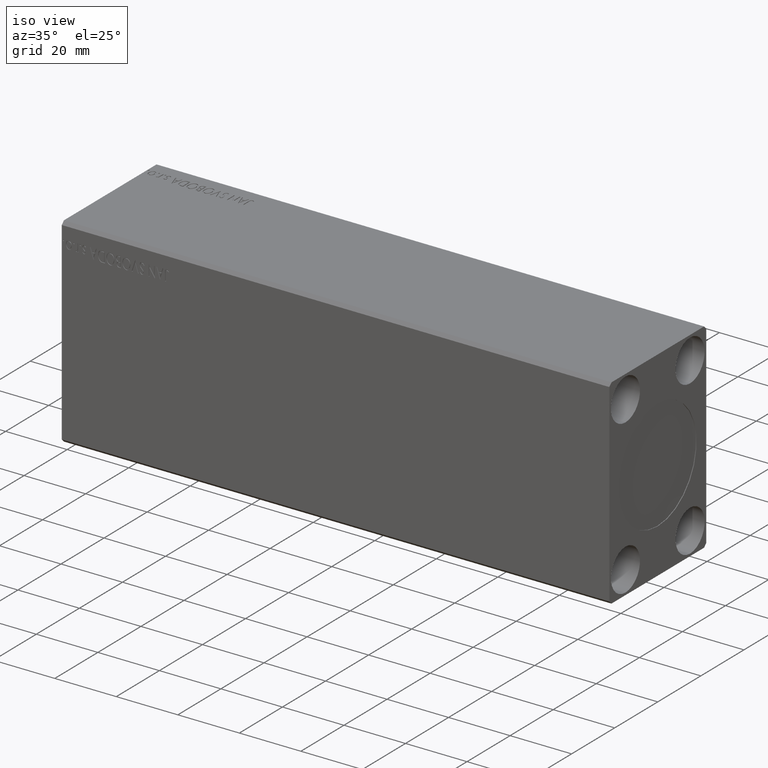
[diagram: clean part render]
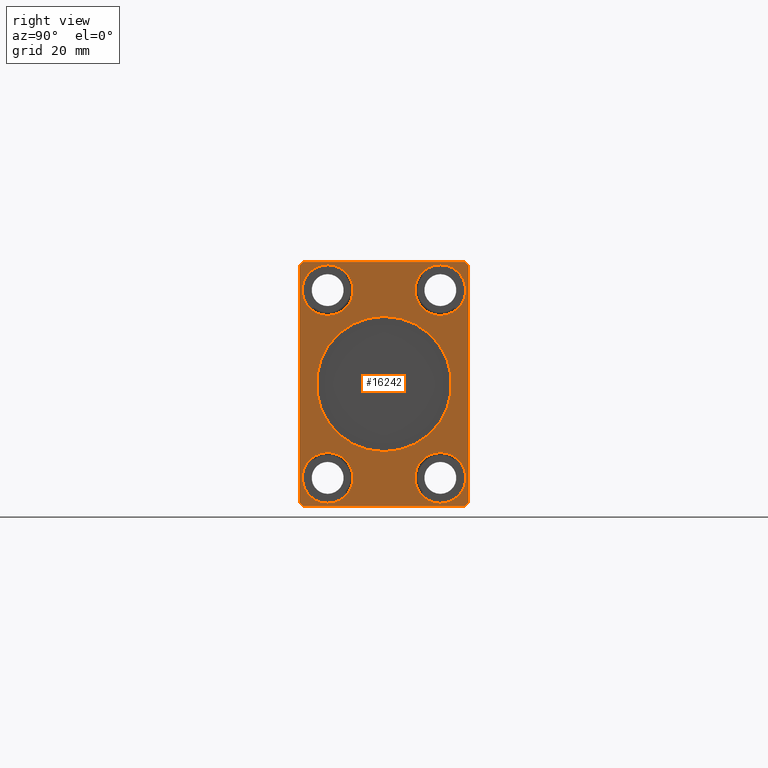
[diagram: tour spotlight — one face highlighted and labeled with its STEP entity id]
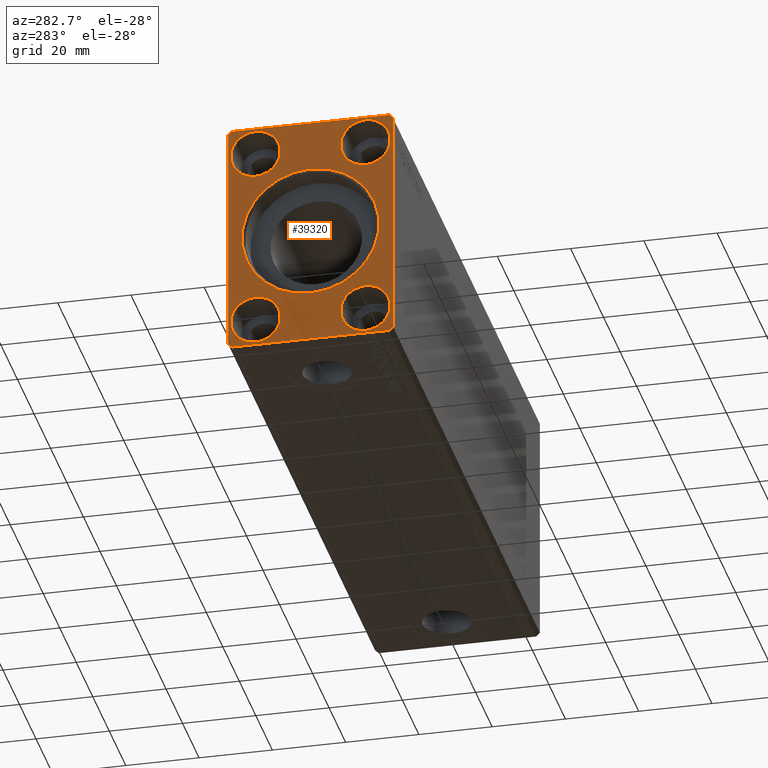
[diagram: tour spotlight — one face highlighted and labeled with its STEP entity id]
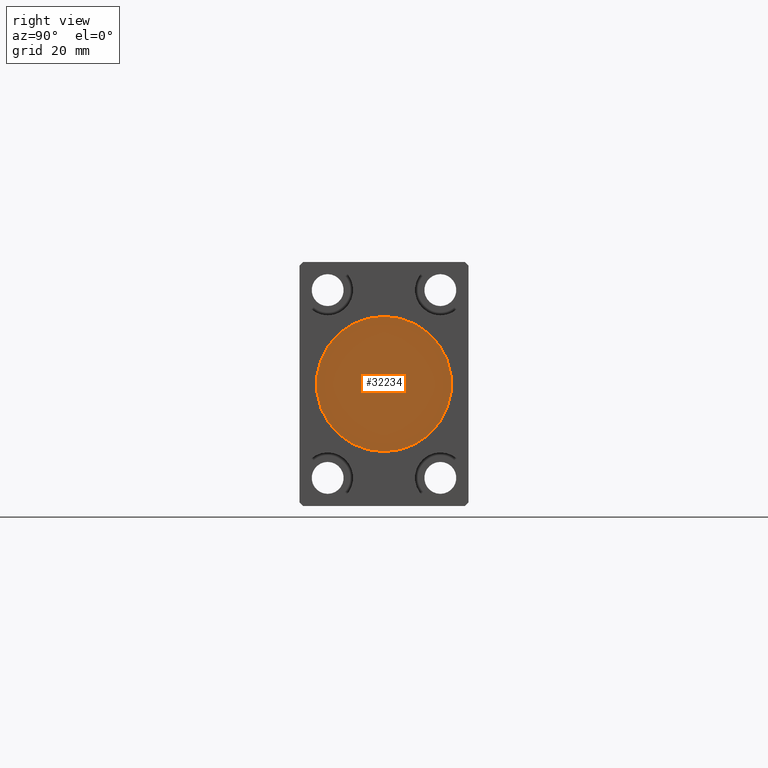
[diagram: tour spotlight — one face highlighted and labeled with its STEP entity id]
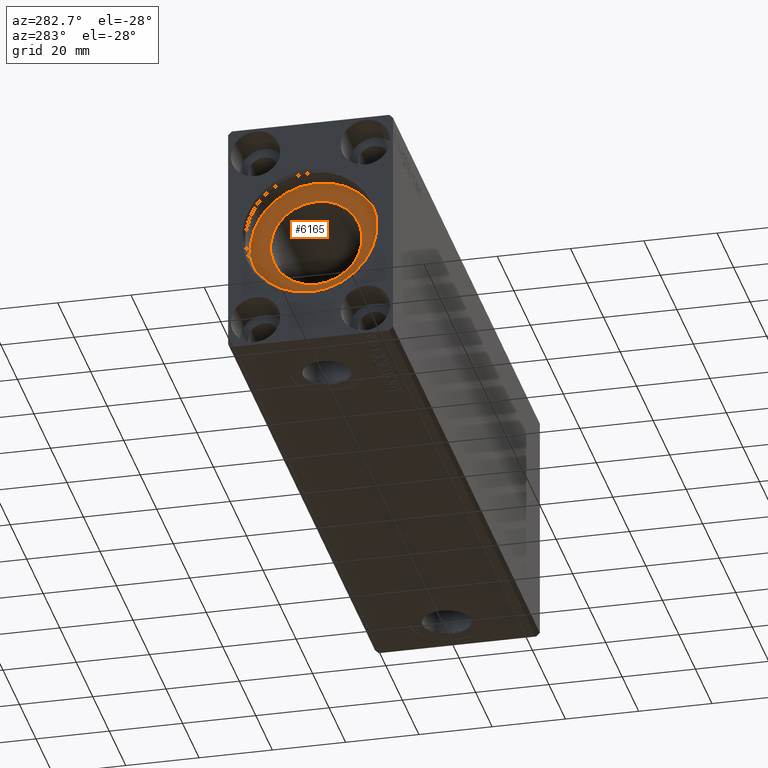
[diagram: tour spotlight — one face highlighted and labeled with its STEP entity id]
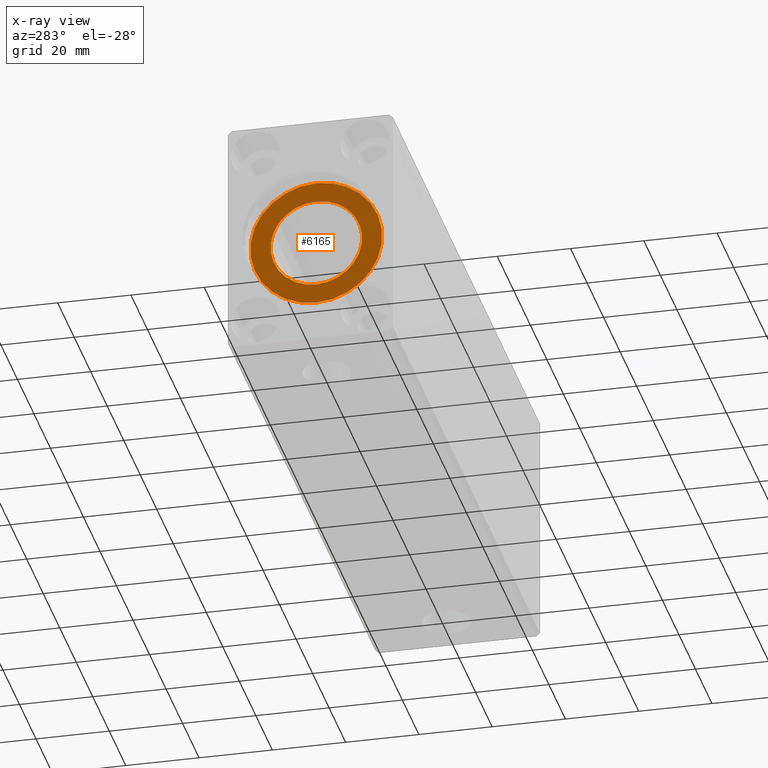
[diagram: x-ray of the same camera — body ghosted, this tour face saturated]
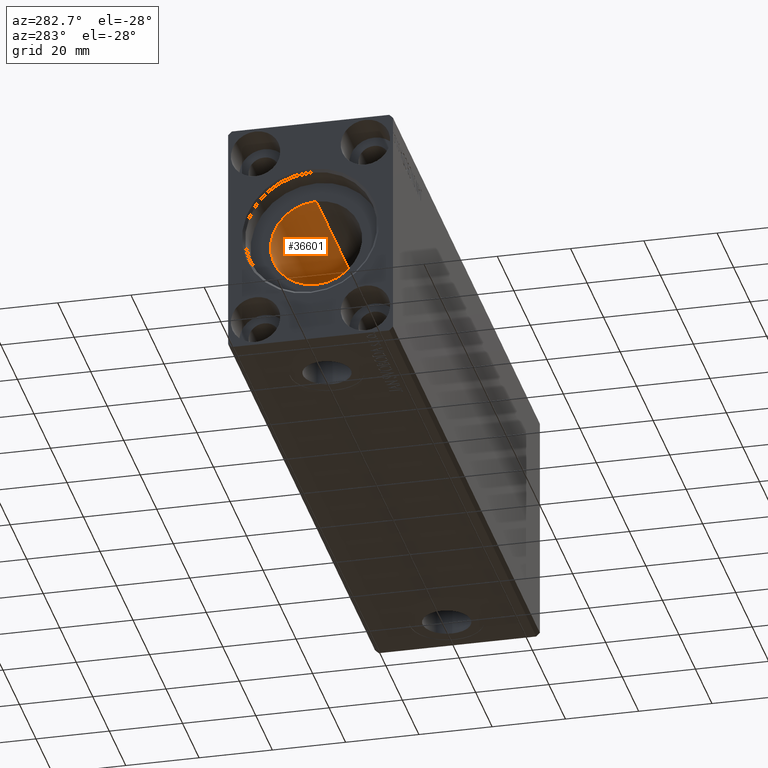
[diagram: tour spotlight — one face highlighted and labeled with its STEP entity id]
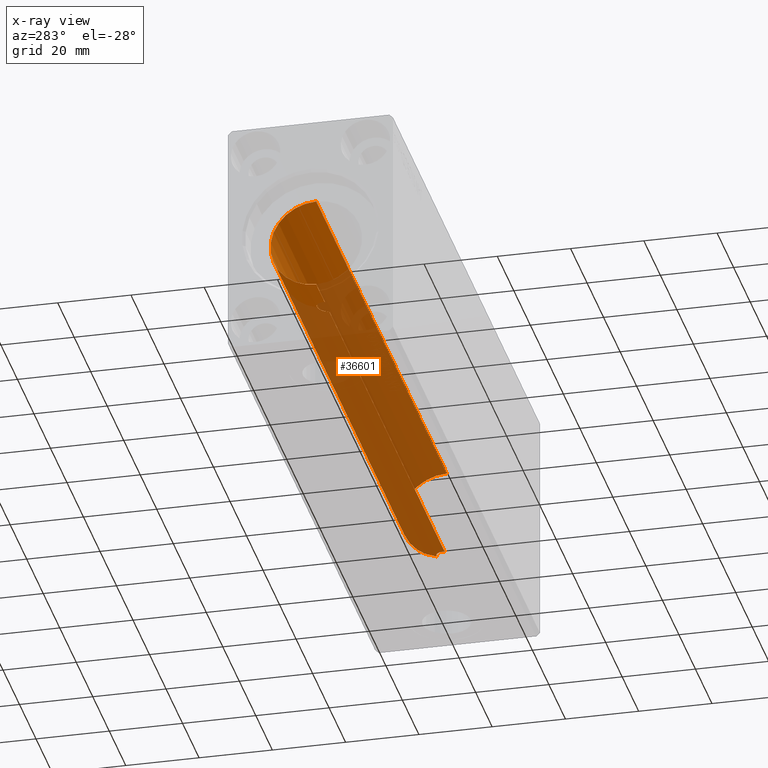
[diagram: x-ray of the same camera — body ghosted, this tour face saturated]
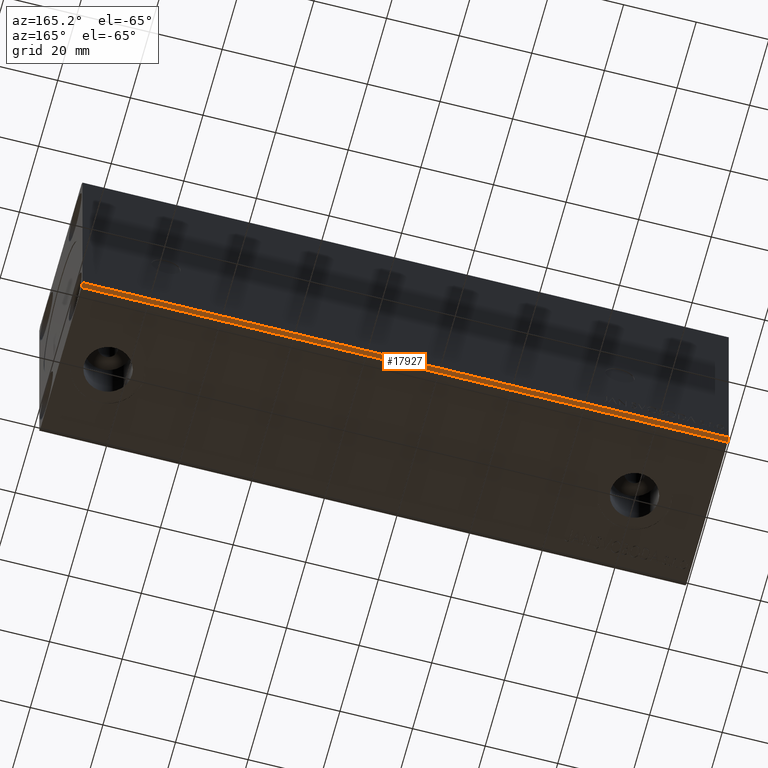
[diagram: tour spotlight — one face highlighted and labeled with its STEP entity id]
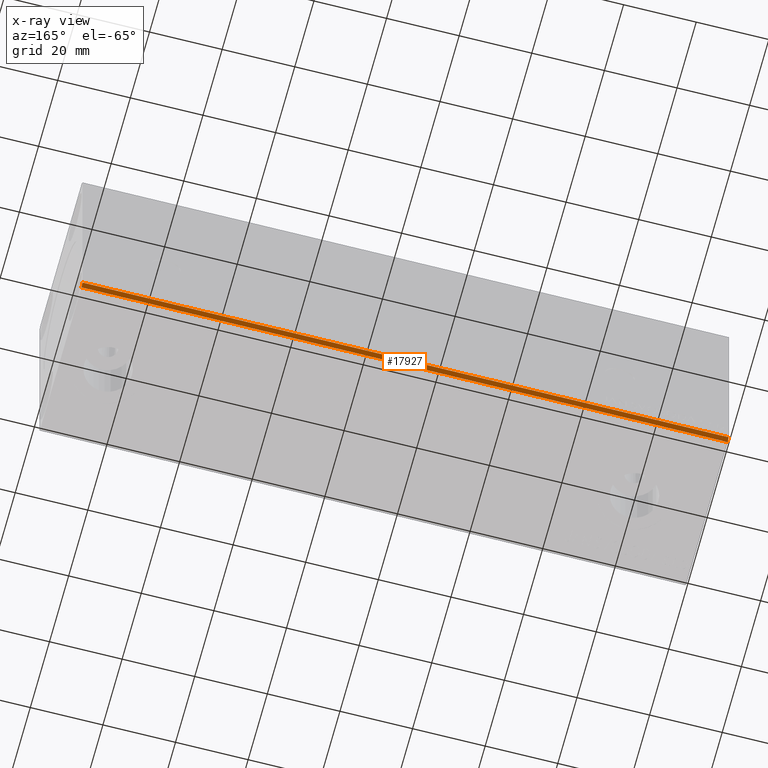
[diagram: x-ray of the same camera — body ghosted, this tour face saturated]
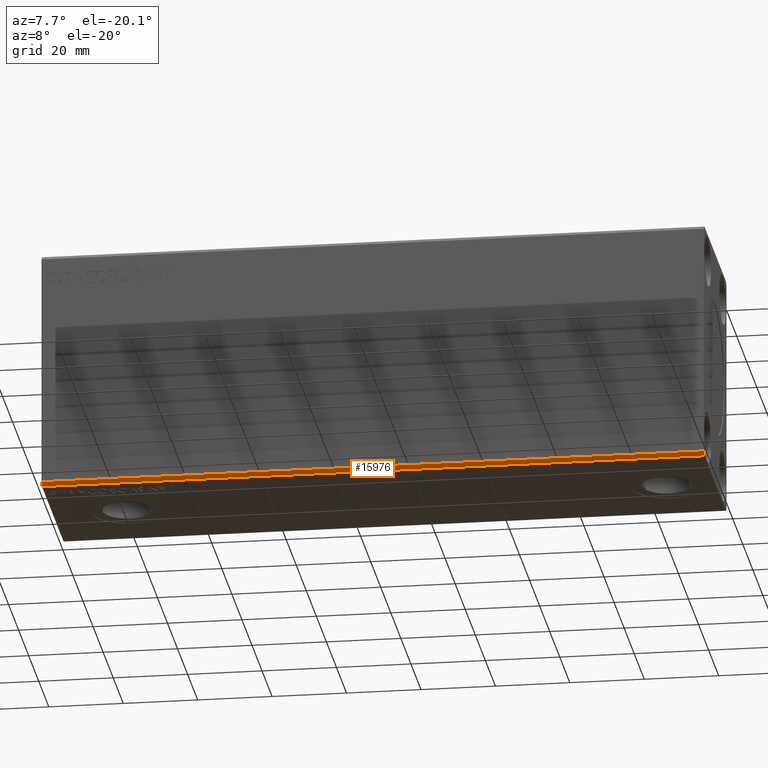
[diagram: tour spotlight — one face highlighted and labeled with its STEP entity id]
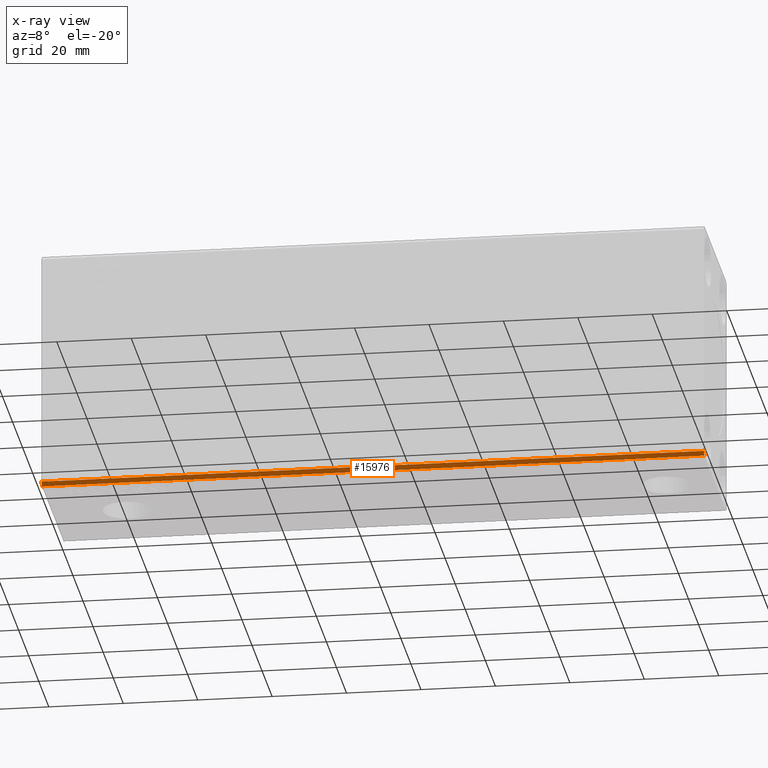
[diagram: x-ray of the same camera — body ghosted, this tour face saturated]
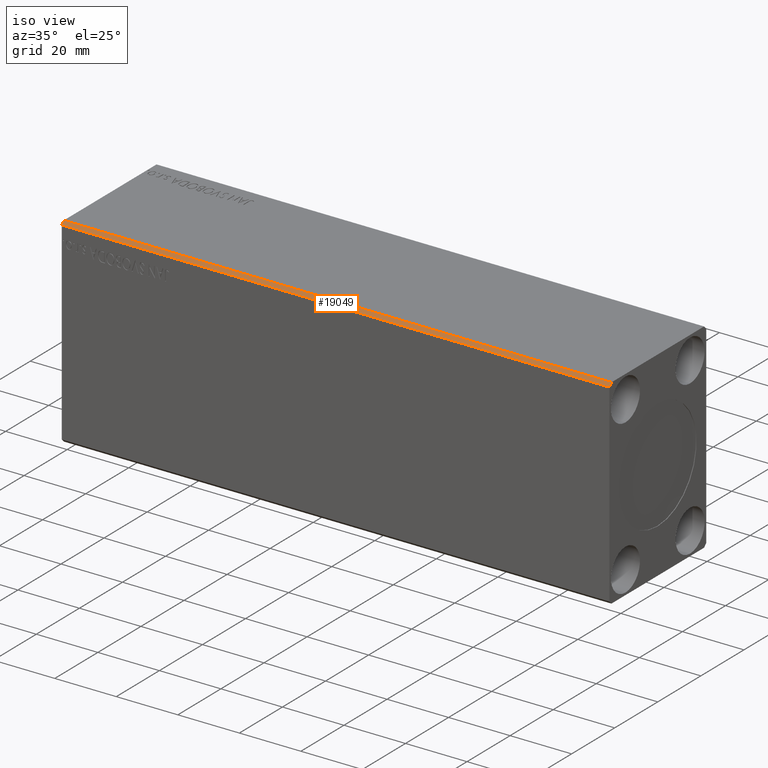
[diagram: tour spotlight — one face highlighted and labeled with its STEP entity id]
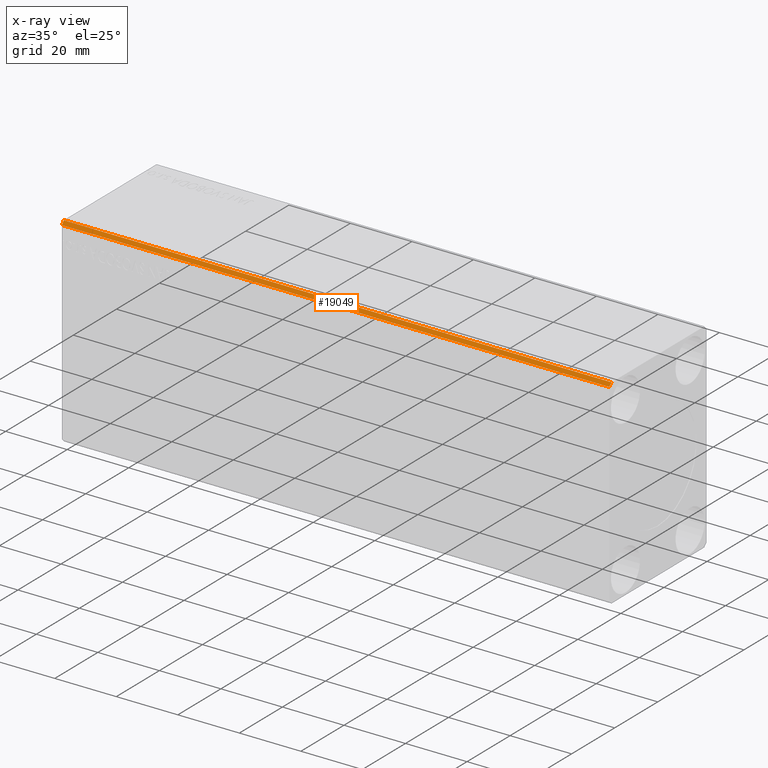
[diagram: x-ray of the same camera — body ghosted, this tour face saturated]
A machine part: a face-by-face anatomy tour. The part has 824 B-rep faces; the first image is the clean iso view, then the 8 largest visible faces are spotlighted one at a time (largest first), each with its STEP entity span.

Face 1 — right view, entity #16242. In plain terms, the highlighted planar face has unit normal (1, 0, 0).
Definition (entity closure, byte-faithful):
#218 = AXIS2_PLACEMENT_3D ( 'NONE', #41998, #18537, #18751 ) ;
#301 = CARTESIAN_POINT ( 'NONE',  ( 178.0000000000000000, 0.000000000000000000, 0.000000000000000000 ) ) ;
#560 = CARTESIAN_POINT ( 'NONE',  ( 178.0000000000000000, 22.49999999999999645, -31.50000000000000000 ) ) ;
#679 = CARTESIAN_POINT ( 'NONE',  ( 178.0000000000000000, 15.00000000000000000, 31.75000000000001421 ) ) ;
#710 = CARTESIAN_POINT ( 'NONE',  ( 178.0000000000000000, -22.50000000000001776, 31.50000000000000000 ) ) ;
#736 = VERTEX_POINT ( 'NONE', #36505 ) ;
#811 = CARTESIAN_POINT ( 'NONE',  ( 178.0000000000000000, 21.49999999999999645, -32.50000000000000000 ) ) ;
#890 = DIRECTION ( 'NONE',  ( 1.000000000000000000, -0.000000000000000000, -0.000000000000000000 ) ) ;
#1614 = EDGE_LOOP ( 'NONE', ( #25911, #20975 ) ) ;
#1825 = VECTOR ( 'NONE', #8856, 1000.000000000000114 ) ;
#1892 = EDGE_CURVE ( 'NONE', #20413, #4944, #9583, .T. ) ;
#1924 = DIRECTION ( 'NONE',  ( -1.000000000000000000, -0.000000000000000000, -0.000000000000000000 ) ) ;
#2078 = DIRECTION ( 'NONE',  ( 1.000000000000000000, -0.000000000000000000, -0.000000000000000000 ) ) ;
#2540 = DIRECTION ( 'NONE',  ( 0.000000000000000000, -0.7071067811865474617, 0.7071067811865474617 ) ) ;
#2915 = VERTEX_POINT ( 'NONE', #24560 ) ;
#2959 = AXIS2_PLACEMENT_3D ( 'NONE', #8005, #890, #37505 ) ;
#3121 = EDGE_CURVE ( 'NONE', #736, #7085, #37202, .T. ) ;
#3379 = FACE_BOUND ( 'NONE', #37308, .T. ) ;
#3900 = ORIENTED_EDGE ( 'NONE', *, *, #3121, .T. ) ;
#4024 = CARTESIAN_POINT ( 'NONE',  ( 178.0000000000000000, 21.49999999999999645, 32.50000000000000000 ) ) ;
#4054 = ORIENTED_EDGE ( 'NONE', *, *, #8083, .T. ) ;
#4665 = ORIENTED_EDGE ( 'NONE', *, *, #41373, .T. ) ;
#4744 = CARTESIAN_POINT ( 'NONE',  ( 178.0000000000000000, 15.00000000000000000, -18.25000000000001066 ) ) ;
#4944 = VERTEX_POINT ( 'NONE', #33727 ) ;
#4956 = VECTOR ( 'NONE', #39740, 1000.000000000000114 ) ;
#5121 = AXIS2_PLACEMENT_3D ( 'NONE', #17571, #30704, #13709 ) ;
#5435 = VERTEX_POINT ( 'NONE', #11281 ) ;
#5580 = DIRECTION ( 'NONE',  ( 0.000000000000000000, 0.000000000000000000, 1.000000000000000000 ) ) ;
#7052 = DIRECTION ( 'NONE',  ( 0.000000000000000000, -1.000000000000000000, 0.000000000000000000 ) ) ;
#7085 = VERTEX_POINT ( 'NONE', #39444 ) ;
#7388 = CARTESIAN_POINT ( 'NONE',  ( 178.0000000000000000, 15.00000000000000000, 25.00000000000000000 ) ) ;
#7644 = CIRCLE ( 'NONE', #31708, 6.749999999999992006 ) ;
#7714 = EDGE_LOOP ( 'NONE', ( #10702, #21483, #4665, #24724, #12290, #4054, #3900, #33999 ) ) ;
#8005 = CARTESIAN_POINT ( 'NONE',  ( 178.0000000000000000, 15.00000000000000000, 25.00000000000000000 ) ) ;
#8045 = VERTEX_POINT ( 'NONE', #679 ) ;
#8083 = EDGE_CURVE ( 'NONE', #5435, #736, #14253, .T. ) ;
#8389 = AXIS2_PLACEMENT_3D ( 'NONE', #40910, #17439, #17655 ) ;
#8569 = EDGE_CURVE ( 'NONE', #37181, #11212, #14367, .T. ) ;
#8706 = EDGE_CURVE ( 'NONE', #11807, #27753, #7644, .T. ) ;
#8760 = CARTESIAN_POINT ( 'NONE',  ( 178.0000000000000000, 15.00000000000000000, -25.00000000000000000 ) ) ;
#8848 = DIRECTION ( 'NONE',  ( 0.000000000000000000, 1.000000000000000000, 1.613696256722610912E-16 ) ) ;
#8856 = DIRECTION ( 'NONE',  ( 0.000000000000000000, 0.7071067811865451302, -0.7071067811865500152 ) ) ;
#9403 = CARTESIAN_POINT ( 'NONE',  ( 178.0000000000000000, -21.50000000000001421, 32.50000000000000000 ) ) ;
#9583 = CIRCLE ( 'NONE', #32269, 6.750000000000006217 ) ;
#9632 = EDGE_CURVE ( 'NONE', #4944, #20413, #26928, .T. ) ;
#10061 = PLANE ( 'NONE',  #24234 ) ;
#10482 = FACE_BOUND ( 'NONE', #1614, .T. ) ;
#10528 = ORIENTED_EDGE ( 'NONE', *, *, #19246, .F. ) ;
#10702 = ORIENTED_EDGE ( 'NONE', *, *, #39372, .T. ) ;
#11032 = CARTESIAN_POINT ( 'NONE',  ( 178.0000000000000000, 21.49999999999999645, 32.50000000000000000 ) ) ;
#11212 = VERTEX_POINT ( 'NONE', #19566 ) ;
#11243 = CIRCLE ( 'NONE', #2959, 6.750000000000015987 ) ;
#11281 = CARTESIAN_POINT ( 'NONE',  ( 178.0000000000000000, -21.50000000000001776, -32.50000000000000711 ) ) ;
#11366 = DIRECTION ( 'NONE',  ( -1.000000000000000000, -0.000000000000000000, -0.000000000000000000 ) ) ;
#11807 = VERTEX_POINT ( 'NONE', #24607 ) ;
#12290 = ORIENTED_EDGE ( 'NONE', *, *, #33389, .T. ) ;
#12457 = VERTEX_POINT ( 'NONE', #36318 ) ;
#12618 = CARTESIAN_POINT ( 'NONE',  ( 178.0000000000000000, 15.00000000000000000, 18.24999999999998579 ) ) ;
#13293 = CIRCLE ( 'NONE', #218, 18.00000000000000000 ) ;
#13706 = DIRECTION ( 'NONE',  ( 0.000000000000000000, 0.000000000000000000, 1.000000000000000000 ) ) ;
#13709 = DIRECTION ( 'NONE',  ( 0.000000000000000000, 0.000000000000000000, -1.000000000000000000 ) ) ;
#14253 = LINE ( 'NONE', #24581, #17971 ) ;
#14367 = LINE ( 'NONE', #23406, #15207 ) ;
#14417 = CARTESIAN_POINT ( 'NONE',  ( 178.0000000000000000, -15.00000000000000000, 31.75000000000000711 ) ) ;
#14423 = CARTESIAN_POINT ( 'NONE',  ( 178.0000000000000000, 15.00000000000000000, -25.00000000000000000 ) ) ;
#14527 = EDGE_LOOP ( 'NONE', ( #26028, #29575 ) ) ;
#15207 = VECTOR ( 'NONE', #36767, 1000.000000000000000 ) ;
#16121 = CARTESIAN_POINT ( 'NONE',  ( 178.0000000000000000, -15.00000000000000000, -31.75000000000000000 ) ) ;
#16231 = DIRECTION ( 'NONE',  ( 0.000000000000000000, 0.000000000000000000, 1.000000000000000000 ) ) ;
#16237 = CIRCLE ( 'NONE', #37549, 6.750000000000015987 ) ;
#16242 = ADVANCED_FACE ( 'NONE', ( #20174, #10482, #32101, #41993, #26630, #3379 ), #10061, .T. ) ;
#17288 = DIRECTION ( 'NONE',  ( 1.000000000000000000, -0.000000000000000000, -0.000000000000000000 ) ) ;
#17439 = DIRECTION ( 'NONE',  ( -1.000000000000000000, -0.000000000000000000, -0.000000000000000000 ) ) ;
#17571 = CARTESIAN_POINT ( 'NONE',  ( 178.0000000000000000, -15.00000000000000000, -25.00000000000000000 ) ) ;
#17654 = VERTEX_POINT ( 'NONE', #11032 ) ;
#17655 = DIRECTION ( 'NONE',  ( 0.000000000000000000, 0.000000000000000000, 1.000000000000000000 ) ) ;
#17971 = VECTOR ( 'NONE', #8848, 1000.000000000000000 ) ;
#18276 = LINE ( 'NONE', #25361, #31011 ) ;
#18451 = CARTESIAN_POINT ( 'NONE',  ( 178.0000000000000000, -15.00000000000000000, -25.00000000000000000 ) ) ;
#18537 = DIRECTION ( 'NONE',  ( 1.000000000000000000, 0.000000000000000000, 0.000000000000000000 ) ) ;
#18751 = DIRECTION ( 'NONE',  ( 0.000000000000000000, 0.000000000000000000, -1.000000000000000000 ) ) ;
#18856 = AXIS2_PLACEMENT_3D ( 'NONE', #18451, #2078, #28353 ) ;
#18959 = DIRECTION ( 'NONE',  ( 0.000000000000000000, 0.000000000000000000, -1.000000000000000000 ) ) ;
#19246 = EDGE_CURVE ( 'NONE', #8045, #32882, #11243, .T. ) ;
#19345 = EDGE_CURVE ( 'NONE', #2915, #25787, #13293, .T. ) ;
#19566 = CARTESIAN_POINT ( 'NONE',  ( 178.0000000000000000, -22.50000000000001421, -31.50000000000000711 ) ) ;
#19669 = DIRECTION ( 'NONE',  ( -1.000000000000000000, -0.000000000000000000, -0.000000000000000000 ) ) ;
#20174 = FACE_BOUND ( 'NONE', #41066, .T. ) ;
#20187 = LINE ( 'NONE', #4024, #39690 ) ;
#20413 = VERTEX_POINT ( 'NONE', #14417 ) ;
#20946 = EDGE_CURVE ( 'NONE', #36958, #12457, #30497, .T. ) ;
#20975 = ORIENTED_EDGE ( 'NONE', *, *, #1892, .T. ) ;
#21313 = CARTESIAN_POINT ( 'NONE',  ( 178.0000000000000000, -21.50000000000001421, 32.50000000000000000 ) ) ;
#21483 = ORIENTED_EDGE ( 'NONE', *, *, #36022, .T. ) ;
#21685 = CARTESIAN_POINT ( 'NONE',  ( 178.0000000000000000, 22.49999999999999645, 31.50000000000000000 ) ) ;
#21734 = EDGE_CURVE ( 'NONE', #12457, #36958, #36047, .T. ) ;
#23406 = CARTESIAN_POINT ( 'NONE',  ( 178.0000000000000000, -22.50000000000001776, 31.50000000000000000 ) ) ;
#23779 = ORIENTED_EDGE ( 'NONE', *, *, #27351, .F. ) ;
#23847 = DIRECTION ( 'NONE',  ( 0.000000000000000000, 0.7071067811865474617, 0.7071067811865474617 ) ) ;
#23958 = DIRECTION ( 'NONE',  ( 0.000000000000000000, 0.000000000000000000, -1.000000000000000000 ) ) ;
#24234 = AXIS2_PLACEMENT_3D ( 'NONE', #26835, #36330, #18959 ) ;
#24516 = AXIS2_PLACEMENT_3D ( 'NONE', #301, #30013, #36063 ) ;
#24560 = CARTESIAN_POINT ( 'NONE',  ( 178.0000000000000000, 2.204364238465235428E-15, 18.00000000000000000 ) ) ;
#24581 = CARTESIAN_POINT ( 'NONE',  ( 178.0000000000000000, -21.50000000000001776, -32.50000000000000711 ) ) ;
#24607 = CARTESIAN_POINT ( 'NONE',  ( 178.0000000000000000, 15.00000000000000000, -31.74999999999999289 ) ) ;
#24724 = ORIENTED_EDGE ( 'NONE', *, *, #8569, .T. ) ;
#25361 = CARTESIAN_POINT ( 'NONE',  ( 178.0000000000000000, 22.49999999999999645, 31.50000000000000000 ) ) ;
#25787 = VERTEX_POINT ( 'NONE', #26737 ) ;
#25911 = ORIENTED_EDGE ( 'NONE', *, *, #9632, .T. ) ;
#26028 = ORIENTED_EDGE ( 'NONE', *, *, #8706, .T. ) ;
#26602 = LINE ( 'NONE', #9403, #4956 ) ;
#26630 = FACE_BOUND ( 'NONE', #26843, .T. ) ;
#26737 = CARTESIAN_POINT ( 'NONE',  ( 178.0000000000000000, 0.000000000000000000, -18.00000000000000000 ) ) ;
#26835 = CARTESIAN_POINT ( 'NONE',  ( 178.0000000000000000, 0.000000000000000000, 0.000000000000000000 ) ) ;
#26843 = EDGE_LOOP ( 'NONE', ( #30082, #36314 ) ) ;
#26928 = CIRCLE ( 'NONE', #8389, 6.750000000000006217 ) ;
#27351 = EDGE_CURVE ( 'NONE', #32882, #8045, #16237, .T. ) ;
#27753 = VERTEX_POINT ( 'NONE', #4744 ) ;
#28353 = DIRECTION ( 'NONE',  ( 0.000000000000000000, 0.000000000000000000, -1.000000000000000000 ) ) ;
#28727 = ORIENTED_EDGE ( 'NONE', *, *, #19345, .F. ) ;
#29144 = CARTESIAN_POINT ( 'NONE',  ( 178.0000000000000000, -15.00000000000000000, 25.00000000000000000 ) ) ;
#29252 = EDGE_CURVE ( 'NONE', #25787, #2915, #32078, .T. ) ;
#29575 = ORIENTED_EDGE ( 'NONE', *, *, #34368, .T. ) ;
#30013 = DIRECTION ( 'NONE',  ( 1.000000000000000000, 0.000000000000000000, 0.000000000000000000 ) ) ;
#30082 = ORIENTED_EDGE ( 'NONE', *, *, #20946, .F. ) ;
#30339 = ORIENTED_EDGE ( 'NONE', *, *, #29252, .F. ) ;
#30497 = CIRCLE ( 'NONE', #18856, 6.749999999999999112 ) ;
#30704 = DIRECTION ( 'NONE',  ( 1.000000000000000000, -0.000000000000000000, -0.000000000000000000 ) ) ;
#30983 = VECTOR ( 'NONE', #13706, 1000.000000000000000 ) ;
#31011 = VECTOR ( 'NONE', #2540, 1000.000000000000114 ) ;
#31422 = CIRCLE ( 'NONE', #33485, 6.749999999999992006 ) ;
#31708 = AXIS2_PLACEMENT_3D ( 'NONE', #8760, #11366, #38463 ) ;
#32078 = CIRCLE ( 'NONE', #24516, 18.00000000000000000 ) ;
#32101 = FACE_BOUND ( 'NONE', #14527, .T. ) ;
#32269 = AXIS2_PLACEMENT_3D ( 'NONE', #29144, #19669, #16231 ) ;
#32882 = VERTEX_POINT ( 'NONE', #12618 ) ;
#33389 = EDGE_CURVE ( 'NONE', #11212, #5435, #40952, .T. ) ;
#33485 = AXIS2_PLACEMENT_3D ( 'NONE', #14423, #1924, #5580 ) ;
#33727 = CARTESIAN_POINT ( 'NONE',  ( 178.0000000000000000, -15.00000000000000000, 18.24999999999999645 ) ) ;
#33999 = ORIENTED_EDGE ( 'NONE', *, *, #37634, .T. ) ;
#34368 = EDGE_CURVE ( 'NONE', #27753, #11807, #31422, .T. ) ;
#34381 = VERTEX_POINT ( 'NONE', #21313 ) ;
#34667 = VERTEX_POINT ( 'NONE', #21685 ) ;
#36022 = EDGE_CURVE ( 'NONE', #17654, #34381, #20187, .T. ) ;
#36047 = CIRCLE ( 'NONE', #5121, 6.749999999999999112 ) ;
#36063 = DIRECTION ( 'NONE',  ( 0.000000000000000000, 0.000000000000000000, -1.000000000000000000 ) ) ;
#36314 = ORIENTED_EDGE ( 'NONE', *, *, #21734, .F. ) ;
#36318 = CARTESIAN_POINT ( 'NONE',  ( 178.0000000000000000, -15.00000000000000000, -18.25000000000000355 ) ) ;
#36330 = DIRECTION ( 'NONE',  ( 1.000000000000000000, 0.000000000000000000, 0.000000000000000000 ) ) ;
#36505 = CARTESIAN_POINT ( 'NONE',  ( 178.0000000000000000, 21.49999999999999645, -32.50000000000000000 ) ) ;
#36767 = DIRECTION ( 'NONE',  ( 0.000000000000000000, 5.507058653894625853E-17, -1.000000000000000000 ) ) ;
#36958 = VERTEX_POINT ( 'NONE', #16121 ) ;
#37181 = VERTEX_POINT ( 'NONE', #710 ) ;
#37202 = LINE ( 'NONE', #811, #40531 ) ;
#37308 = EDGE_LOOP ( 'NONE', ( #23779, #10528 ) ) ;
#37505 = DIRECTION ( 'NONE',  ( 0.000000000000000000, 0.000000000000000000, -1.000000000000000000 ) ) ;
#37549 = AXIS2_PLACEMENT_3D ( 'NONE', #7388, #17288, #23958 ) ;
#37634 = EDGE_CURVE ( 'NONE', #7085, #34667, #38487, .T. ) ;
#38148 = CARTESIAN_POINT ( 'NONE',  ( 178.0000000000000000, -22.50000000000001421, -31.50000000000000711 ) ) ;
#38463 = DIRECTION ( 'NONE',  ( 0.000000000000000000, 0.000000000000000000, 1.000000000000000000 ) ) ;
#38487 = LINE ( 'NONE', #560, #30983 ) ;
#39372 = EDGE_CURVE ( 'NONE', #34667, #17654, #18276, .T. ) ;
#39444 = CARTESIAN_POINT ( 'NONE',  ( 178.0000000000000000, 22.49999999999999645, -31.50000000000000000 ) ) ;
#39690 = VECTOR ( 'NONE', #7052, 1000.000000000000000 ) ;
#39740 = DIRECTION ( 'NONE',  ( 0.000000000000000000, -0.7071067811865474617, -0.7071067811865474617 ) ) ;
#40531 = VECTOR ( 'NONE', #23847, 1000.000000000000114 ) ;
#40910 = CARTESIAN_POINT ( 'NONE',  ( 178.0000000000000000, -15.00000000000000000, 25.00000000000000000 ) ) ;
#40952 = LINE ( 'NONE', #38148, #1825 ) ;
#41066 = EDGE_LOOP ( 'NONE', ( #30339, #28727 ) ) ;
#41373 = EDGE_CURVE ( 'NONE', #34381, #37181, #26602, .T. ) ;
#41993 = FACE_OUTER_BOUND ( 'NONE', #7714, .T. ) ;
#41998 = CARTESIAN_POINT ( 'NONE',  ( 178.0000000000000000, 0.000000000000000000, 0.000000000000000000 ) ) ;

Face 2 — auxiliary view, entity #39320. In plain terms, the highlighted planar face has unit normal (1, 0, 0).
Definition (entity closure, byte-faithful):
#33 = DIRECTION ( 'NONE',  ( 0.000000000000000000, 0.000000000000000000, 1.000000000000000000 ) ) ;
#414 = DIRECTION ( 'NONE',  ( 1.000000000000000000, -0.000000000000000000, -0.000000000000000000 ) ) ;
#525 = EDGE_CURVE ( 'NONE', #10825, #24891, #8341, .T. ) ;
#617 = CARTESIAN_POINT ( 'NONE',  ( 0.000000000000000000, 21.49999999999999645, -32.50000000000000000 ) ) ;
#648 = VECTOR ( 'NONE', #5860, 1000.000000000000114 ) ;
#860 = EDGE_CURVE ( 'NONE', #7371, #35270, #13843, .T. ) ;
#914 = DIRECTION ( 'NONE',  ( 0.000000000000000000, 0.000000000000000000, -1.000000000000000000 ) ) ;
#916 = EDGE_CURVE ( 'NONE', #39473, #23622, #41177, .T. ) ;
#1043 = LINE ( 'NONE', #30970, #20724 ) ;
#1366 = CIRCLE ( 'NONE', #2715, 6.750000000000015987 ) ;
#1885 = VERTEX_POINT ( 'NONE', #32388 ) ;
#2343 = LINE ( 'NONE', #28612, #41453 ) ;
#2715 = AXIS2_PLACEMENT_3D ( 'NONE', #37156, #33085, #16715 ) ;
#2816 = EDGE_CURVE ( 'NONE', #17885, #41095, #33653, .T. ) ;
#3295 = ORIENTED_EDGE ( 'NONE', *, *, #5057, .T. ) ;
#3363 = VECTOR ( 'NONE', #28768, 1000.000000000000114 ) ;
#3501 = CIRCLE ( 'NONE', #35847, 6.749999999999999112 ) ;
#4124 = AXIS2_PLACEMENT_3D ( 'NONE', #10683, #13703, #34161 ) ;
#4178 = EDGE_CURVE ( 'NONE', #23622, #39473, #1366, .T. ) ;
#4220 = CARTESIAN_POINT ( 'NONE',  ( 0.000000000000000000, 15.00000000000000000, -31.74999999999999289 ) ) ;
#4253 = CIRCLE ( 'NONE', #17321, 6.750000000000006217 ) ;
#4502 = FACE_BOUND ( 'NONE', #40262, .T. ) ;
#4618 = EDGE_CURVE ( 'NONE', #35270, #12592, #35154, .T. ) ;
#4647 = CARTESIAN_POINT ( 'NONE',  ( 0.000000000000000000, -22.50000000000001776, 31.50000000000000000 ) ) ;
#4671 = EDGE_CURVE ( 'NONE', #15864, #41623, #34402, .T. ) ;
#5057 = EDGE_CURVE ( 'NONE', #26415, #22634, #22687, .T. ) ;
#5267 = CARTESIAN_POINT ( 'NONE',  ( 0.000000000000000000, 0.000000000000000000, 0.000000000000000000 ) ) ;
#5368 = DIRECTION ( 'NONE',  ( 0.000000000000000000, 0.000000000000000000, 1.000000000000000000 ) ) ;
#5851 = DIRECTION ( 'NONE',  ( 0.000000000000000000, 0.000000000000000000, 1.000000000000000000 ) ) ;
#5860 = DIRECTION ( 'NONE',  ( 0.000000000000000000, -0.7071067811865474617, -0.7071067811865474617 ) ) ;
#5970 = ORIENTED_EDGE ( 'NONE', *, *, #39180, .T. ) ;
#6057 = DIRECTION ( 'NONE',  ( -1.000000000000000000, 0.000000000000000000, 0.000000000000000000 ) ) ;
#6065 = CARTESIAN_POINT ( 'NONE',  ( 0.000000000000000000, -15.00000000000000000, 25.00000000000000000 ) ) ;
#6275 = DIRECTION ( 'NONE',  ( -1.000000000000000000, 0.000000000000000000, 0.000000000000000000 ) ) ;
#6396 = ORIENTED_EDGE ( 'NONE', *, *, #12636, .F. ) ;
#6662 = CARTESIAN_POINT ( 'NONE',  ( 0.000000000000000000, 15.00000000000000000, -25.00000000000000000 ) ) ;
#6869 = CARTESIAN_POINT ( 'NONE',  ( 0.000000000000000000, 21.49999999999999645, 32.50000000000000000 ) ) ;
#6940 = AXIS2_PLACEMENT_3D ( 'NONE', #27532, #40671, #11185 ) ;
#7302 = FACE_BOUND ( 'NONE', #32758, .T. ) ;
#7371 = VERTEX_POINT ( 'NONE', #6869 ) ;
#7483 = EDGE_CURVE ( 'NONE', #1885, #38870, #36377, .T. ) ;
#8071 = DIRECTION ( 'NONE',  ( 1.000000000000000000, 0.000000000000000000, 0.000000000000000000 ) ) ;
#8155 = ORIENTED_EDGE ( 'NONE', *, *, #4671, .T. ) ;
#8341 = LINE ( 'NONE', #21470, #3363 ) ;
#8500 = DIRECTION ( 'NONE',  ( 0.000000000000000000, 0.000000000000000000, -1.000000000000000000 ) ) ;
#8535 = CARTESIAN_POINT ( 'NONE',  ( 0.000000000000000000, 2.290089514405549716E-15, -18.69999999999999574 ) ) ;
#8547 = ORIENTED_EDGE ( 'NONE', *, *, #4178, .T. ) ;
#8637 = ORIENTED_EDGE ( 'NONE', *, *, #860, .F. ) ;
#9478 = ORIENTED_EDGE ( 'NONE', *, *, #7483, .F. ) ;
#9592 = ORIENTED_EDGE ( 'NONE', *, *, #12639, .F. ) ;
#10066 = CARTESIAN_POINT ( 'NONE',  ( 0.000000000000000000, -21.50000000000001421, 32.50000000000000000 ) ) ;
#10293 = EDGE_CURVE ( 'NONE', #41095, #17885, #4253, .T. ) ;
#10560 = CARTESIAN_POINT ( 'NONE',  ( 0.000000000000000000, -15.00000000000000000, -18.25000000000000355 ) ) ;
#10683 = CARTESIAN_POINT ( 'NONE',  ( 0.000000000000000000, 0.000000000000000000, 0.000000000000000000 ) ) ;
#10825 = VERTEX_POINT ( 'NONE', #33937 ) ;
#10966 = FACE_BOUND ( 'NONE', #31425, .T. ) ;
#10976 = CARTESIAN_POINT ( 'NONE',  ( 0.000000000000000000, 15.00000000000000000, -18.25000000000001066 ) ) ;
#11185 = DIRECTION ( 'NONE',  ( 0.000000000000000000, 0.000000000000000000, -1.000000000000000000 ) ) ;
#11445 = ORIENTED_EDGE ( 'NONE', *, *, #38358, .F. ) ;
#11546 = CARTESIAN_POINT ( 'NONE',  ( 0.000000000000000000, -21.50000000000001776, -32.50000000000000711 ) ) ;
#12592 = VERTEX_POINT ( 'NONE', #4647 ) ;
#12636 = EDGE_CURVE ( 'NONE', #24041, #7371, #14769, .T. ) ;
#12639 = EDGE_CURVE ( 'NONE', #24891, #1885, #14555, .T. ) ;
#12738 = CARTESIAN_POINT ( 'NONE',  ( 0.000000000000000000, -15.00000000000000000, 25.00000000000000000 ) ) ;
#13428 = CARTESIAN_POINT ( 'NONE',  ( 0.000000000000000000, 15.00000000000000000, 25.00000000000000000 ) ) ;
#13467 = EDGE_CURVE ( 'NONE', #12592, #10825, #1043, .T. ) ;
#13703 = DIRECTION ( 'NONE',  ( 1.000000000000000000, 0.000000000000000000, 0.000000000000000000 ) ) ;
#13760 = DIRECTION ( 'NONE',  ( 0.000000000000000000, 0.7071067811865474617, 0.7071067811865474617 ) ) ;
#13843 = LINE ( 'NONE', #40110, #21234 ) ;
#14060 = DIRECTION ( 'NONE',  ( 0.000000000000000000, -1.000000000000000000, 0.000000000000000000 ) ) ;
#14555 = LINE ( 'NONE', #11546, #37208 ) ;
#14610 = ORIENTED_EDGE ( 'NONE', *, *, #32051, .F. ) ;
#14626 = FACE_BOUND ( 'NONE', #42599, .T. ) ;
#14769 = LINE ( 'NONE', #21010, #36529 ) ;
#15743 = ORIENTED_EDGE ( 'NONE', *, *, #10293, .F. ) ;
#15817 = AXIS2_PLACEMENT_3D ( 'NONE', #22426, #32558, #42462 ) ;
#15860 = AXIS2_PLACEMENT_3D ( 'NONE', #5267, #8071, #8500 ) ;
#15864 = VERTEX_POINT ( 'NONE', #26642 ) ;
#16145 = DIRECTION ( 'NONE',  ( 0.000000000000000000, 0.000000000000000000, 1.000000000000000000 ) ) ;
#16627 = CARTESIAN_POINT ( 'NONE',  ( 0.000000000000000000, 22.49999999999999645, -31.50000000000000000 ) ) ;
#16715 = DIRECTION ( 'NONE',  ( 0.000000000000000000, 0.000000000000000000, -1.000000000000000000 ) ) ;
#16969 = CARTESIAN_POINT ( 'NONE',  ( 0.000000000000000000, -15.00000000000000000, 31.75000000000000711 ) ) ;
#17044 = ORIENTED_EDGE ( 'NONE', *, *, #4618, .F. ) ;
#17321 = AXIS2_PLACEMENT_3D ( 'NONE', #12738, #6057, #5851 ) ;
#17885 = VERTEX_POINT ( 'NONE', #23040 ) ;
#18185 = EDGE_CURVE ( 'NONE', #38870, #24041, #2343, .T. ) ;
#18813 = CARTESIAN_POINT ( 'NONE',  ( 0.000000000000000000, 0.000000000000000000, 18.69999999999999574 ) ) ;
#19063 = CIRCLE ( 'NONE', #15860, 18.69999999999999574 ) ;
#19757 = CARTESIAN_POINT ( 'NONE',  ( 0.000000000000000000, 15.00000000000000000, 18.24999999999998579 ) ) ;
#19877 = DIRECTION ( 'NONE',  ( 1.000000000000000000, -0.000000000000000000, -0.000000000000000000 ) ) ;
#20664 = VECTOR ( 'NONE', #13760, 1000.000000000000114 ) ;
#20724 = VECTOR ( 'NONE', #27309, 1000.000000000000000 ) ;
#21010 = CARTESIAN_POINT ( 'NONE',  ( 0.000000000000000000, 22.49999999999999645, 31.50000000000000000 ) ) ;
#21234 = VECTOR ( 'NONE', #14060, 1000.000000000000000 ) ;
#21398 = CIRCLE ( 'NONE', #41348, 6.749999999999992006 ) ;
#21470 = CARTESIAN_POINT ( 'NONE',  ( 0.000000000000000000, -22.50000000000001421, -31.50000000000000711 ) ) ;
#22388 = CARTESIAN_POINT ( 'NONE',  ( 0.000000000000000000, -21.50000000000001776, -32.50000000000000711 ) ) ;
#22426 = CARTESIAN_POINT ( 'NONE',  ( 0.000000000000000000, -15.00000000000000000, -25.00000000000000000 ) ) ;
#22634 = VERTEX_POINT ( 'NONE', #8535 ) ;
#22687 = CIRCLE ( 'NONE', #4124, 18.69999999999999574 ) ;
#23019 = DIRECTION ( 'NONE',  ( -1.000000000000000000, 0.000000000000000000, 0.000000000000000000 ) ) ;
#23040 = CARTESIAN_POINT ( 'NONE',  ( 0.000000000000000000, -15.00000000000000000, 18.24999999999999645 ) ) ;
#23280 = DIRECTION ( 'NONE',  ( -1.000000000000000000, 0.000000000000000000, 0.000000000000000000 ) ) ;
#23622 = VERTEX_POINT ( 'NONE', #34866 ) ;
#24041 = VERTEX_POINT ( 'NONE', #35815 ) ;
#24086 = FACE_OUTER_BOUND ( 'NONE', #32161, .T. ) ;
#24772 = ORIENTED_EDGE ( 'NONE', *, *, #2816, .F. ) ;
#24891 = VERTEX_POINT ( 'NONE', #22388 ) ;
#26415 = VERTEX_POINT ( 'NONE', #18813 ) ;
#26504 = EDGE_LOOP ( 'NONE', ( #5970, #8155 ) ) ;
#26642 = CARTESIAN_POINT ( 'NONE',  ( 0.000000000000000000, -15.00000000000000000, -31.75000000000000000 ) ) ;
#27309 = DIRECTION ( 'NONE',  ( 0.000000000000000000, 5.507058653894625853E-17, -1.000000000000000000 ) ) ;
#27532 = CARTESIAN_POINT ( 'NONE',  ( 0.000000000000000000, 0.000000000000000000, 0.000000000000000000 ) ) ;
#28591 = CIRCLE ( 'NONE', #31367, 6.749999999999992006 ) ;
#28612 = CARTESIAN_POINT ( 'NONE',  ( 0.000000000000000000, 22.49999999999999645, -31.50000000000000000 ) ) ;
#28768 = DIRECTION ( 'NONE',  ( 0.000000000000000000, 0.7071067811865451302, -0.7071067811865500152 ) ) ;
#28933 = ORIENTED_EDGE ( 'NONE', *, *, #18185, .F. ) ;
#29136 = VERTEX_POINT ( 'NONE', #4220 ) ;
#30026 = ORIENTED_EDGE ( 'NONE', *, *, #36461, .T. ) ;
#30120 = CARTESIAN_POINT ( 'NONE',  ( 0.000000000000000000, -15.00000000000000000, -25.00000000000000000 ) ) ;
#30770 = PLANE ( 'NONE',  #6940 ) ;
#30970 = CARTESIAN_POINT ( 'NONE',  ( 0.000000000000000000, -22.50000000000001776, 31.50000000000000000 ) ) ;
#31367 = AXIS2_PLACEMENT_3D ( 'NONE', #39442, #23280, #33 ) ;
#31425 = EDGE_LOOP ( 'NONE', ( #15743, #24772 ) ) ;
#32051 = EDGE_CURVE ( 'NONE', #39957, #29136, #28591, .T. ) ;
#32135 = DIRECTION ( 'NONE',  ( 0.000000000000000000, 0.000000000000000000, 1.000000000000000000 ) ) ;
#32161 = EDGE_LOOP ( 'NONE', ( #6396, #28933, #9478, #9592, #36091, #37248, #17044, #8637 ) ) ;
#32388 = CARTESIAN_POINT ( 'NONE',  ( 0.000000000000000000, 21.49999999999999645, -32.50000000000000000 ) ) ;
#32558 = DIRECTION ( 'NONE',  ( 1.000000000000000000, -0.000000000000000000, -0.000000000000000000 ) ) ;
#32758 = EDGE_LOOP ( 'NONE', ( #14610, #11445 ) ) ;
#33085 = DIRECTION ( 'NONE',  ( 1.000000000000000000, -0.000000000000000000, -0.000000000000000000 ) ) ;
#33653 = CIRCLE ( 'NONE', #39145, 6.750000000000006217 ) ;
#33937 = CARTESIAN_POINT ( 'NONE',  ( 0.000000000000000000, -22.50000000000001421, -31.50000000000000711 ) ) ;
#34014 = FACE_BOUND ( 'NONE', #26504, .T. ) ;
#34158 = DIRECTION ( 'NONE',  ( 0.000000000000000000, -0.7071067811865474617, 0.7071067811865474617 ) ) ;
#34161 = DIRECTION ( 'NONE',  ( 0.000000000000000000, 0.000000000000000000, -1.000000000000000000 ) ) ;
#34402 = CIRCLE ( 'NONE', #15817, 6.749999999999999112 ) ;
#34866 = CARTESIAN_POINT ( 'NONE',  ( 0.000000000000000000, 15.00000000000000000, 31.75000000000001421 ) ) ;
#35154 = LINE ( 'NONE', #39219, #648 ) ;
#35270 = VERTEX_POINT ( 'NONE', #10066 ) ;
#35679 = AXIS2_PLACEMENT_3D ( 'NONE', #13428, #19877, #914 ) ;
#35815 = CARTESIAN_POINT ( 'NONE',  ( 0.000000000000000000, 22.49999999999999645, 31.50000000000000000 ) ) ;
#35847 = AXIS2_PLACEMENT_3D ( 'NONE', #30120, #414, #39605 ) ;
#36091 = ORIENTED_EDGE ( 'NONE', *, *, #525, .F. ) ;
#36377 = LINE ( 'NONE', #617, #20664 ) ;
#36461 = EDGE_CURVE ( 'NONE', #22634, #26415, #19063, .T. ) ;
#36529 = VECTOR ( 'NONE', #34158, 1000.000000000000114 ) ;
#37156 = CARTESIAN_POINT ( 'NONE',  ( 0.000000000000000000, 15.00000000000000000, 25.00000000000000000 ) ) ;
#37208 = VECTOR ( 'NONE', #40824, 1000.000000000000000 ) ;
#37248 = ORIENTED_EDGE ( 'NONE', *, *, #13467, .F. ) ;
#38089 = ORIENTED_EDGE ( 'NONE', *, *, #916, .T. ) ;
#38358 = EDGE_CURVE ( 'NONE', #29136, #39957, #21398, .T. ) ;
#38870 = VERTEX_POINT ( 'NONE', #16627 ) ;
#39145 = AXIS2_PLACEMENT_3D ( 'NONE', #6065, #6275, #32135 ) ;
#39180 = EDGE_CURVE ( 'NONE', #41623, #15864, #3501, .T. ) ;
#39219 = CARTESIAN_POINT ( 'NONE',  ( 0.000000000000000000, -21.50000000000001421, 32.50000000000000000 ) ) ;
#39320 = ADVANCED_FACE ( 'NONE', ( #10966, #7302, #14626, #24086, #34014, #4502 ), #30770, .F. ) ;
#39442 = CARTESIAN_POINT ( 'NONE',  ( 0.000000000000000000, 15.00000000000000000, -25.00000000000000000 ) ) ;
#39473 = VERTEX_POINT ( 'NONE', #19757 ) ;
#39605 = DIRECTION ( 'NONE',  ( 0.000000000000000000, 0.000000000000000000, -1.000000000000000000 ) ) ;
#39957 = VERTEX_POINT ( 'NONE', #10976 ) ;
#40110 = CARTESIAN_POINT ( 'NONE',  ( 0.000000000000000000, 21.49999999999999645, 32.50000000000000000 ) ) ;
#40262 = EDGE_LOOP ( 'NONE', ( #8547, #38089 ) ) ;
#40671 = DIRECTION ( 'NONE',  ( 1.000000000000000000, 0.000000000000000000, 0.000000000000000000 ) ) ;
#40824 = DIRECTION ( 'NONE',  ( 0.000000000000000000, 1.000000000000000000, 1.613696256722610912E-16 ) ) ;
#41095 = VERTEX_POINT ( 'NONE', #16969 ) ;
#41177 = CIRCLE ( 'NONE', #35679, 6.750000000000015987 ) ;
#41348 = AXIS2_PLACEMENT_3D ( 'NONE', #6662, #23019, #16145 ) ;
#41453 = VECTOR ( 'NONE', #5368, 1000.000000000000000 ) ;
#41623 = VERTEX_POINT ( 'NONE', #10560 ) ;
#42462 = DIRECTION ( 'NONE',  ( 0.000000000000000000, 0.000000000000000000, -1.000000000000000000 ) ) ;
#42599 = EDGE_LOOP ( 'NONE', ( #3295, #30026 ) ) ;

Face 3 — right view, entity #32234. In plain terms, the highlighted planar face has unit normal (1, 0, 0).
Definition (entity closure, byte-faithful):
#438 = CARTESIAN_POINT ( 'NONE',  ( 177.7999999999999829, 0.000000000000000000, -18.00000000000000000 ) ) ;
#4583 = CARTESIAN_POINT ( 'NONE',  ( 177.7999999999999829, 0.000000000000000000, 0.000000000000000000 ) ) ;
#6291 = DIRECTION ( 'NONE',  ( 0.000000000000000000, 0.000000000000000000, -1.000000000000000000 ) ) ;
#8484 = DIRECTION ( 'NONE',  ( 1.000000000000000000, 0.000000000000000000, 0.000000000000000000 ) ) ;
#9487 = VERTEX_POINT ( 'NONE', #438 ) ;
#13852 = EDGE_CURVE ( 'NONE', #27874, #9487, #22778, .T. ) ;
#14941 = CARTESIAN_POINT ( 'NONE',  ( 177.7999999999999829, 0.000000000000000000, 0.000000000000000000 ) ) ;
#16573 = ORIENTED_EDGE ( 'NONE', *, *, #27402, .T. ) ;
#18354 = DIRECTION ( 'NONE',  ( 1.000000000000000000, 0.000000000000000000, 0.000000000000000000 ) ) ;
#18560 = DIRECTION ( 'NONE',  ( 0.000000000000000000, 0.000000000000000000, -1.000000000000000000 ) ) ;
#21397 = FACE_OUTER_BOUND ( 'NONE', #38847, .T. ) ;
#22647 = CARTESIAN_POINT ( 'NONE',  ( 177.7999999999999829, 0.000000000000000000, 0.000000000000000000 ) ) ;
#22778 = CIRCLE ( 'NONE', #38620, 18.00000000000000000 ) ;
#27402 = EDGE_CURVE ( 'NONE', #9487, #27874, #30680, .T. ) ;
#27874 = VERTEX_POINT ( 'NONE', #30533 ) ;
#29966 = AXIS2_PLACEMENT_3D ( 'NONE', #14941, #8484, #31090 ) ;
#30533 = CARTESIAN_POINT ( 'NONE',  ( 177.7999999999999829, 2.204364238465235428E-15, 18.00000000000000000 ) ) ;
#30680 = CIRCLE ( 'NONE', #34824, 18.00000000000000000 ) ;
#31090 = DIRECTION ( 'NONE',  ( 0.000000000000000000, 0.000000000000000000, -1.000000000000000000 ) ) ;
#32234 = ADVANCED_FACE ( 'NONE', ( #21397 ), #40998, .T. ) ;
#32643 = ORIENTED_EDGE ( 'NONE', *, *, #13852, .T. ) ;
#34824 = AXIS2_PLACEMENT_3D ( 'NONE', #4583, #18354, #18560 ) ;
#38620 = AXIS2_PLACEMENT_3D ( 'NONE', #22647, #41835, #6291 ) ;
#38847 = EDGE_LOOP ( 'NONE', ( #16573, #32643 ) ) ;
#40998 = PLANE ( 'NONE',  #29966 ) ;
#41835 = DIRECTION ( 'NONE',  ( 1.000000000000000000, 0.000000000000000000, 0.000000000000000000 ) ) ;

Face 4 — auxiliary view, entity #6165. An x-ray twin of the same camera follows (body ghosted, this face saturated) — the face is partly hidden behind the body. In plain terms, the highlighted planar face has unit normal (-1, 0, 0).
Definition (entity closure, byte-faithful):
#1778 = CARTESIAN_POINT ( 'NONE',  ( 7.000000000000006217, 0.000000000000000000, 12.50000000000000000 ) ) ;
#2957 = EDGE_CURVE ( 'NONE', #23607, #8730, #10963, .T. ) ;
#4153 = AXIS2_PLACEMENT_3D ( 'NONE', #7990, #21120, #8420 ) ;
#4966 = DIRECTION ( 'NONE',  ( -1.000000000000000000, 0.000000000000000000, 0.000000000000000000 ) ) ;
#5329 = AXIS2_PLACEMENT_3D ( 'NONE', #16739, #33746, #39557 ) ;
#5354 = VERTEX_POINT ( 'NONE', #31713 ) ;
#6165 = ADVANCED_FACE ( 'NONE', ( #24613, #37542 ), #18363, .T. ) ;
#6233 = ORIENTED_EDGE ( 'NONE', *, *, #20893, .F. ) ;
#6438 = AXIS2_PLACEMENT_3D ( 'NONE', #38048, #21257, #25327 ) ;
#6495 = EDGE_CURVE ( 'NONE', #5354, #27405, #19289, .T. ) ;
#7990 = CARTESIAN_POINT ( 'NONE',  ( 7.000000000000006217, 0.000000000000000000, 0.000000000000000000 ) ) ;
#8420 = DIRECTION ( 'NONE',  ( 0.000000000000000000, 0.000000000000000000, 1.000000000000000000 ) ) ;
#8730 = VERTEX_POINT ( 'NONE', #31581 ) ;
#10963 = CIRCLE ( 'NONE', #12350, 18.00000000000000000 ) ;
#12350 = AXIS2_PLACEMENT_3D ( 'NONE', #31012, #4966, #18101 ) ;
#12360 = ORIENTED_EDGE ( 'NONE', *, *, #35251, .T. ) ;
#16739 = CARTESIAN_POINT ( 'NONE',  ( 7.000000000000000000, 0.000000000000000000, 0.000000000000000000 ) ) ;
#18101 = DIRECTION ( 'NONE',  ( 0.000000000000000000, 0.000000000000000000, 1.000000000000000000 ) ) ;
#18156 = CARTESIAN_POINT ( 'NONE',  ( 7.000000000000000000, 0.000000000000000000, 0.000000000000000000 ) ) ;
#18363 = PLANE ( 'NONE',  #36470 ) ;
#18463 = EDGE_LOOP ( 'NONE', ( #6233, #39560 ) ) ;
#19121 = CARTESIAN_POINT ( 'NONE',  ( 7.000000000000000000, 0.000000000000000000, 18.00000000000000000 ) ) ;
#19289 = CIRCLE ( 'NONE', #4153, 12.50000000000000000 ) ;
#20433 = CIRCLE ( 'NONE', #5329, 18.00000000000000000 ) ;
#20652 = ORIENTED_EDGE ( 'NONE', *, *, #2957, .T. ) ;
#20893 = EDGE_CURVE ( 'NONE', #27405, #5354, #31215, .T. ) ;
#21120 = DIRECTION ( 'NONE',  ( -1.000000000000000000, 0.000000000000000000, 0.000000000000000000 ) ) ;
#21257 = DIRECTION ( 'NONE',  ( -1.000000000000000000, 0.000000000000000000, 0.000000000000000000 ) ) ;
#23607 = VERTEX_POINT ( 'NONE', #19121 ) ;
#24613 = FACE_BOUND ( 'NONE', #18463, .T. ) ;
#25112 = EDGE_LOOP ( 'NONE', ( #20652, #12360 ) ) ;
#25327 = DIRECTION ( 'NONE',  ( 0.000000000000000000, 0.000000000000000000, 1.000000000000000000 ) ) ;
#27405 = VERTEX_POINT ( 'NONE', #1778 ) ;
#27844 = DIRECTION ( 'NONE',  ( -1.000000000000000000, 0.000000000000000000, 0.000000000000000000 ) ) ;
#31012 = CARTESIAN_POINT ( 'NONE',  ( 7.000000000000000000, 0.000000000000000000, 0.000000000000000000 ) ) ;
#31215 = CIRCLE ( 'NONE', #6438, 12.50000000000000000 ) ;
#31581 = CARTESIAN_POINT ( 'NONE',  ( 7.000000000000000000, 2.204364238465235428E-15, -18.00000000000000000 ) ) ;
#31713 = CARTESIAN_POINT ( 'NONE',  ( 7.000000000000006217, 1.530808498934191127E-15, -12.50000000000000000 ) ) ;
#33746 = DIRECTION ( 'NONE',  ( -1.000000000000000000, 0.000000000000000000, 0.000000000000000000 ) ) ;
#35251 = EDGE_CURVE ( 'NONE', #8730, #23607, #20433, .T. ) ;
#36470 = AXIS2_PLACEMENT_3D ( 'NONE', #18156, #27844, #40979 ) ;
#37542 = FACE_OUTER_BOUND ( 'NONE', #25112, .T. ) ;
#38048 = CARTESIAN_POINT ( 'NONE',  ( 7.000000000000006217, 0.000000000000000000, 0.000000000000000000 ) ) ;
#39557 = DIRECTION ( 'NONE',  ( 0.000000000000000000, 0.000000000000000000, 1.000000000000000000 ) ) ;
#39560 = ORIENTED_EDGE ( 'NONE', *, *, #6495, .F. ) ;
#40979 = DIRECTION ( 'NONE',  ( 0.000000000000000000, 0.000000000000000000, 1.000000000000000000 ) ) ;

Face 5 — auxiliary view, entity #36601. An x-ray twin of the same camera follows (body ghosted, this face saturated) — the face is partly hidden behind the body. In plain terms, the highlighted cylindrical surface (partial cylindrical patch) has radius 12.5 mm, axis along (-1, -0, -0).
Definition (entity closure, byte-faithful):
#92 = CARTESIAN_POINT ( 'NONE',  ( 21.67765097797745000, 2.186313684462028561, -12.30773175274779696 ) ) ;
#839 = CARTESIAN_POINT ( 'NONE',  ( 162.2500000000000000, 0.1907659903166716298, -12.50000000000000000 ) ) ;
#1055 = CARTESIAN_POINT ( 'NONE',  ( 162.2696346034319674, 0.3780789295156948837, -12.49563873491596055 ) ) ;
#1297 = B_SPLINE_CURVE_WITH_KNOTS ( 'NONE', 3,
 ( #27104, #839, #1055, #37018, #30980, #7513, #21297, #4934, #13981, #1484, #11612, #20432, #14840, #37231, #40245, #37453, #10749, #34227 ),
 .UNSPECIFIED., .F., .F.,
 ( 4, 2, 2, 2, 2, 2, 2, 2, 4 ),
 ( 1.661328160655242528E-17, 0.0005640453962891360529, 0.001128090792578255409, 0.001692136188867374548, 0.002256181585156493471, 0.002820226981445612610, 0.003384272377734731316, 0.003948317774023850889, 0.004512363170312969594 ),
 .UNSPECIFIED. ) ;
#1484 = CARTESIAN_POINT ( 'NONE',  ( 163.2645778072300971, 2.141435696792783006, -12.31587917732582405 ) ) ;
#1778 = CARTESIAN_POINT ( 'NONE',  ( 7.000000000000006217, 0.000000000000000000, 12.50000000000000000 ) ) ;
#2324 = DIRECTION ( 'NONE',  ( 0.000000000000000000, 0.000000000000000000, 1.000000000000000000 ) ) ;
#2628 = CARTESIAN_POINT ( 'NONE',  ( 165.1999999999999886, 0.000000000000000000, 12.50000000000000000 ) ) ;
#2801 = VECTOR ( 'NONE', #11167, 1000.000000000000000 ) ;
#2904 = CARTESIAN_POINT ( 'NONE',  ( 20.71490637999901097, 2.661546522184823793, -12.21341365713819549 ) ) ;
#3115 = CARTESIAN_POINT ( 'NONE',  ( 18.18244140116479812, 2.071460332093628676, -12.32783125500043830 ) ) ;
#3538 = CARTESIAN_POINT ( 'NONE',  ( 22.60903469086153805, 0.8875746957000578696, -12.46956333986168808 ) ) ;
#4934 = CARTESIAN_POINT ( 'NONE',  ( 162.8654959004362297, 1.744100014776083896, -12.37869643309572787 ) ) ;
#5105 = EDGE_LOOP ( 'NONE', ( #35902, #25474, #37410, #13461, #10472, #37785, #21853 ) ) ;
#5354 = VERTEX_POINT ( 'NONE', #31713 ) ;
#5484 = VERTEX_POINT ( 'NONE', #2628 ) ;
#5925 = CARTESIAN_POINT ( 'NONE',  ( 22.07243795910860129, 1.816614182526467225, -12.36796727656868633 ) ) ;
#6134 = CARTESIAN_POINT ( 'NONE',  ( 20.88660895109521221, 2.609413850856258765, -12.22480885735935807 ) ) ;
#6353 = CARTESIAN_POINT ( 'NONE',  ( 17.52959184625719402, 1.221495998374420910, -12.44129557589794999 ) ) ;
#6438 = AXIS2_PLACEMENT_3D ( 'NONE', #38048, #21257, #25327 ) ;
#6563 = CARTESIAN_POINT ( 'NONE',  ( 20.17887785522957600, 2.750072126172939502, -12.19373213197449068 ) ) ;
#6769 = CARTESIAN_POINT ( 'NONE',  ( 22.73198344075212418, 0.3623570601300959981, -12.49600099464360703 ) ) ;
#6969 = VECTOR ( 'NONE', #28940, 1000.000000000000000 ) ;
#7121 = LINE ( 'NONE', #10142, #2801 ) ;
#7321 = VERTEX_POINT ( 'NONE', #22809 ) ;
#7513 = CARTESIAN_POINT ( 'NONE',  ( 162.5554830417600556, 1.273675975170151187, -12.43614557646076157 ) ) ;
#9964 = DIRECTION ( 'NONE',  ( -1.000000000000000000, -0.000000000000000000, -0.000000000000000000 ) ) ;
#10142 = CARTESIAN_POINT ( 'NONE',  ( 165.1999999999999886, 0.000000000000000000, 12.50000000000000000 ) ) ;
#10472 = ORIENTED_EDGE ( 'NONE', *, *, #20893, .T. ) ;
#10749 = CARTESIAN_POINT ( 'NONE',  ( 165.0107355032936880, 2.756518868583785586, -12.19228460278573145 ) ) ;
#11167 = DIRECTION ( 'NONE',  ( -1.000000000000000000, -0.000000000000000000, -0.000000000000000000 ) ) ;
#11612 = CARTESIAN_POINT ( 'NONE',  ( 163.4154254701179241, 2.255510429019854879, -12.29522599667661353 ) ) ;
#11723 = AXIS2_PLACEMENT_3D ( 'NONE', #17700, #14266, #14694 ) ;
#11894 = CARTESIAN_POINT ( 'NONE',  ( 22.74999999999999645, 1.530807688574931197E-15, -12.50000000000000000 ) ) ;
#12074 = EDGE_CURVE ( 'NONE', #5484, #27405, #7121, .T. ) ;
#13023 = CARTESIAN_POINT ( 'NONE',  ( 18.62099903834565495, 2.386111389769056679, -12.27057149286319948 ) ) ;
#13461 = ORIENTED_EDGE ( 'NONE', *, *, #12074, .T. ) ;
#13466 = VERTEX_POINT ( 'NONE', #37657 ) ;
#13981 = CARTESIAN_POINT ( 'NONE',  ( 162.9907751274799068, 1.886916119572687123, -12.35743396954574003 ) ) ;
#14266 = DIRECTION ( 'NONE',  ( -1.000000000000000000, -0.000000000000000000, -0.000000000000000000 ) ) ;
#14430 = EDGE_CURVE ( 'NONE', #7321, #21173, #23566, .T. ) ;
#14694 = DIRECTION ( 'NONE',  ( 0.000000000000000000, 0.000000000000000000, 1.000000000000000000 ) ) ;
#14840 = CARTESIAN_POINT ( 'NONE',  ( 163.9082666081707202, 2.530988096186933323, -12.24124901058159232 ) ) ;
#14987 = CARTESIAN_POINT ( 'NONE',  ( 17.24999999999999645, -5.690236386131415672E-16, -12.50000000000000000 ) ) ;
#15502 = AXIS2_PLACEMENT_3D ( 'NONE', #25992, #32044, #2324 ) ;
#15816 = CARTESIAN_POINT ( 'NONE',  ( 165.1999999999999886, 1.530808498934191127E-15, -12.50000000000000000 ) ) ;
#16256 = CARTESIAN_POINT ( 'NONE',  ( 21.22025548180271315, 2.471050917389815638, -12.25352600714093398 ) ) ;
#16682 = CARTESIAN_POINT ( 'NONE',  ( 19.28481741468232968, 2.661545112444659633, -12.21341444467051041 ) ) ;
#17700 = CARTESIAN_POINT ( 'NONE',  ( 165.1999999999999886, 0.000000000000000000, 0.000000000000000000 ) ) ;
#19059 = CARTESIAN_POINT ( 'NONE',  ( 17.81372716143484425, 1.677781961151361356, -12.38780313588274318 ) ) ;
#20432 = CARTESIAN_POINT ( 'NONE',  ( 163.7388159714213032, 2.451044386017168453, -12.25774412453382034 ) ) ;
#20893 = EDGE_CURVE ( 'NONE', #27405, #5354, #31215, .T. ) ;
#21173 = VERTEX_POINT ( 'NONE', #11894 ) ;
#21257 = DIRECTION ( 'NONE',  ( -1.000000000000000000, 0.000000000000000000, 0.000000000000000000 ) ) ;
#21297 = CARTESIAN_POINT ( 'NONE',  ( 162.6475872121823159, 1.436713850531217807, -12.41812641085484259 ) ) ;
#21659 = CARTESIAN_POINT ( 'NONE',  ( 17.33816312481959798, 0.7137085024257853183, -12.48085335430237741 ) ) ;
#21853 = ORIENTED_EDGE ( 'NONE', *, *, #14430, .T. ) ;
#22283 = CARTESIAN_POINT ( 'NONE',  ( 22.47119902117117363, 1.219846816747369500, -12.44145379250113415 ) ) ;
#22493 = CARTESIAN_POINT ( 'NONE',  ( 22.18579476437366083, 1.678338305643695794, -12.38772088269205440 ) ) ;
#22700 = CARTESIAN_POINT ( 'NONE',  ( 18.78019362847970797, 2.471158625858970392, -12.25350115374743432 ) ) ;
#22809 = CARTESIAN_POINT ( 'NONE',  ( 17.24999999999999645, -5.690236386131415672E-16, -12.50000000000000000 ) ) ;
#23566 = B_SPLINE_CURVE_WITH_KNOTS ( 'NONE', 3,
 ( #14987, #24890, #38028, #21659, #34806, #6353, #39074, #19059, #35431, #3115, #39500, #13023, #22700, #29167, #16682, #29803, #39285, #6563, #38868, #2904, #6134, #16256, #26148, #92, #29379, #5925, #22493, #35644, #22283, #3538, #42527, #6769, #25940, #36280 ),
 .UNSPECIFIED., .F., .F.,
 ( 4, 2, 2, 2, 2, 2, 2, 2, 2, 2, 2, 2, 2, 2, 2, 2, 4 ),
 ( 5.527312432840440572E-19, 0.0005390119442936745515, 0.001078023888587348452, 0.001617035832881022353, 0.002156047777174696038, 0.002695059721468369938, 0.003234071665762043839, 0.003773083610055718174, 0.004312095554349392075, 0.004851107498643065542, 0.005390119442936739877, 0.005929131387230414212, 0.006468143331524087679, 0.007007155275817762881, 0.007546167220111436348, 0.008085179164405108948, 0.008624191108698782415 ),
 .UNSPECIFIED. ) ;
#24593 = CYLINDRICAL_SURFACE ( 'NONE', #11723, 12.50000000000000000 ) ;
#24890 = CARTESIAN_POINT ( 'NONE',  ( 17.24999999999999289, 0.1822994177812585215, -12.50000000000000178 ) ) ;
#25086 = LINE ( 'NONE', #15816, #6969 ) ;
#25327 = DIRECTION ( 'NONE',  ( 0.000000000000000000, 0.000000000000000000, 1.000000000000000000 ) ) ;
#25474 = ORIENTED_EDGE ( 'NONE', *, *, #39268, .T. ) ;
#25940 = CARTESIAN_POINT ( 'NONE',  ( 22.74999999999999289, 0.1797902386970152422, -12.50000000000000000 ) ) ;
#25992 = CARTESIAN_POINT ( 'NONE',  ( 165.1999999999999886, 0.000000000000000000, 0.000000000000000000 ) ) ;
#26148 = CARTESIAN_POINT ( 'NONE',  ( 21.38037050196950162, 2.385174544570502153, -12.27074450945806561 ) ) ;
#26738 = LINE ( 'NONE', #29760, #27292 ) ;
#26998 = VERTEX_POINT ( 'NONE', #32274 ) ;
#27104 = CARTESIAN_POINT ( 'NONE',  ( 162.2499999999999716, 1.530808498934191127E-15, -12.50000000000000000 ) ) ;
#27171 = CIRCLE ( 'NONE', #15502, 12.50000000000000000 ) ;
#27292 = VECTOR ( 'NONE', #9964, 1000.000000000000000 ) ;
#27405 = VERTEX_POINT ( 'NONE', #1778 ) ;
#28940 = DIRECTION ( 'NONE',  ( -1.000000000000000000, -0.000000000000000000, -0.000000000000000000 ) ) ;
#29167 = CARTESIAN_POINT ( 'NONE',  ( 19.11088980033452600, 2.608454636563481532, -12.22501042486416800 ) ) ;
#29379 = CARTESIAN_POINT ( 'NONE',  ( 21.81718429212179444, 2.071938085700526067, -12.32776436388422425 ) ) ;
#29733 = EDGE_CURVE ( 'NONE', #5484, #26998, #27171, .T. ) ;
#29760 = CARTESIAN_POINT ( 'NONE',  ( 165.1999999999999886, 1.530808498934191127E-15, -12.50000000000000000 ) ) ;
#29803 = CARTESIAN_POINT ( 'NONE',  ( 19.64009160232311046, 2.732356942495137275, -12.19776784176773177 ) ) ;
#30980 = CARTESIAN_POINT ( 'NONE',  ( 162.4047654286217153, 0.9288009304321593884, -12.46664734883755976 ) ) ;
#31215 = CIRCLE ( 'NONE', #6438, 12.50000000000000000 ) ;
#31713 = CARTESIAN_POINT ( 'NONE',  ( 7.000000000000006217, 1.530808498934191127E-15, -12.50000000000000000 ) ) ;
#32044 = DIRECTION ( 'NONE',  ( -1.000000000000000000, 0.000000000000000000, 0.000000000000000000 ) ) ;
#32274 = CARTESIAN_POINT ( 'NONE',  ( 165.1999999999999886, 2.742717630380488103, -12.19538847269737758 ) ) ;
#34227 = CARTESIAN_POINT ( 'NONE',  ( 165.1999999999999886, 2.742717630380488103, -12.19538847269737758 ) ) ;
#34806 = CARTESIAN_POINT ( 'NONE',  ( 17.39132353128657726, 0.8886934239120802825, -12.46948724203196157 ) ) ;
#35431 = CARTESIAN_POINT ( 'NONE',  ( 17.92952078813951999, 1.818676167131141552, -12.36765088277932811 ) ) ;
#35644 = CARTESIAN_POINT ( 'NONE',  ( 22.38485493252952452, 1.380936338483348846, -12.42438984275412928 ) ) ;
#35735 = EDGE_CURVE ( 'NONE', #13466, #21173, #26738, .T. ) ;
#35902 = ORIENTED_EDGE ( 'NONE', *, *, #35735, .F. ) ;
#36280 = CARTESIAN_POINT ( 'NONE',  ( 22.74999999999999645, 1.530807688574931197E-15, -12.50000000000000000 ) ) ;
#36601 = ADVANCED_FACE ( 'NONE', ( #37521 ), #24593, .F. ) ;
#37018 = CARTESIAN_POINT ( 'NONE',  ( 162.3464829505880971, 0.7461140289528498393, -12.47907227826955001 ) ) ;
#37231 = CARTESIAN_POINT ( 'NONE',  ( 164.2625546672988719, 2.655928636682923560, -12.21475014721759678 ) ) ;
#37410 = ORIENTED_EDGE ( 'NONE', *, *, #29733, .F. ) ;
#37453 = CARTESIAN_POINT ( 'NONE',  ( 164.8227726297794504, 2.750739062330162632, -12.19360844360085849 ) ) ;
#37521 = FACE_OUTER_BOUND ( 'NONE', #5105, .T. ) ;
#37657 = CARTESIAN_POINT ( 'NONE',  ( 162.2499999999999716, 1.530808498934191127E-15, -12.50000000000000000 ) ) ;
#37785 = ORIENTED_EDGE ( 'NONE', *, *, #39597, .F. ) ;
#38028 = CARTESIAN_POINT ( 'NONE',  ( 17.26794682833111949, 0.3614427253092828973, -12.49601694278448427 ) ) ;
#38048 = CARTESIAN_POINT ( 'NONE',  ( 7.000000000000006217, 0.000000000000000000, 0.000000000000000000 ) ) ;
#38868 = CARTESIAN_POINT ( 'NONE',  ( 20.36175699167700159, 2.732041892228271873, -12.19783792929032096 ) ) ;
#39074 = CARTESIAN_POINT ( 'NONE',  ( 17.61412151183330721, 1.379248010154819015, -12.42458424934352834 ) ) ;
#39268 = EDGE_CURVE ( 'NONE', #13466, #26998, #1297, .T. ) ;
#39285 = CARTESIAN_POINT ( 'NONE',  ( 19.81891129561262233, 2.749927429476675123, -12.19376476475220272 ) ) ;
#39500 = CARTESIAN_POINT ( 'NONE',  ( 18.32054373735996222, 2.185085325223804276, -12.30795898788032972 ) ) ;
#39597 = EDGE_CURVE ( 'NONE', #7321, #5354, #25086, .T. ) ;
#40245 = CARTESIAN_POINT ( 'NONE',  ( 164.4493898146180868, 2.700889363439016755, -12.20474698268444769 ) ) ;
#42527 = CARTESIAN_POINT ( 'NONE',  ( 22.66124474153635759, 0.7161093388687587158, -12.48072637757694991 ) ) ;

Face 6 — auxiliary view, entity #17927. An x-ray twin of the same camera follows (body ghosted, this face saturated) — the face is partly hidden behind the body. In plain terms, the highlighted planar face has unit normal (0, -0.7071, 0.7071).
Definition (entity closure, byte-faithful):
#617 = CARTESIAN_POINT ( 'NONE',  ( 0.000000000000000000, 21.49999999999999645, -32.50000000000000000 ) ) ;
#736 = VERTEX_POINT ( 'NONE', #36505 ) ;
#811 = CARTESIAN_POINT ( 'NONE',  ( 178.0000000000000000, 21.49999999999999645, -32.50000000000000000 ) ) ;
#1885 = VERTEX_POINT ( 'NONE', #32388 ) ;
#2026 = EDGE_CURVE ( 'NONE', #7085, #38870, #25023, .T. ) ;
#3121 = EDGE_CURVE ( 'NONE', #736, #7085, #37202, .T. ) ;
#6142 = ORIENTED_EDGE ( 'NONE', *, *, #3121, .F. ) ;
#6255 = DIRECTION ( 'NONE',  ( 0.000000000000000000, -0.7071067811865475727, 0.7071067811865475727 ) ) ;
#7085 = VERTEX_POINT ( 'NONE', #39444 ) ;
#7483 = EDGE_CURVE ( 'NONE', #1885, #38870, #36377, .T. ) ;
#11687 = CARTESIAN_POINT ( 'NONE',  ( 178.0000000000000000, 22.49999999999999645, -31.50000000000000000 ) ) ;
#12726 = CARTESIAN_POINT ( 'NONE',  ( 178.0000000000000000, 21.49999999999999645, -32.50000000000000000 ) ) ;
#13361 = FACE_OUTER_BOUND ( 'NONE', #29759, .T. ) ;
#13760 = DIRECTION ( 'NONE',  ( 0.000000000000000000, 0.7071067811865474617, 0.7071067811865474617 ) ) ;
#16597 = VECTOR ( 'NONE', #25715, 1000.000000000000000 ) ;
#16627 = CARTESIAN_POINT ( 'NONE',  ( 0.000000000000000000, 22.49999999999999645, -31.50000000000000000 ) ) ;
#17927 = ADVANCED_FACE ( 'NONE', ( #13361 ), #26481, .F. ) ;
#18629 = ORIENTED_EDGE ( 'NONE', *, *, #7483, .T. ) ;
#20664 = VECTOR ( 'NONE', #13760, 1000.000000000000114 ) ;
#21344 = ORIENTED_EDGE ( 'NONE', *, *, #2026, .F. ) ;
#23847 = DIRECTION ( 'NONE',  ( 0.000000000000000000, 0.7071067811865474617, 0.7071067811865474617 ) ) ;
#25023 = LINE ( 'NONE', #11687, #28839 ) ;
#25643 = AXIS2_PLACEMENT_3D ( 'NONE', #12726, #6255, #35764 ) ;
#25715 = DIRECTION ( 'NONE',  ( -1.000000000000000000, -0.000000000000000000, -0.000000000000000000 ) ) ;
#26481 = PLANE ( 'NONE',  #25643 ) ;
#27867 = ORIENTED_EDGE ( 'NONE', *, *, #39609, .T. ) ;
#28839 = VECTOR ( 'NONE', #37955, 1000.000000000000000 ) ;
#29759 = EDGE_LOOP ( 'NONE', ( #18629, #21344, #6142, #27867 ) ) ;
#32388 = CARTESIAN_POINT ( 'NONE',  ( 0.000000000000000000, 21.49999999999999645, -32.50000000000000000 ) ) ;
#35764 = DIRECTION ( 'NONE',  ( 0.000000000000000000, -0.7071067811865474617, -0.7071067811865474617 ) ) ;
#36377 = LINE ( 'NONE', #617, #20664 ) ;
#36505 = CARTESIAN_POINT ( 'NONE',  ( 178.0000000000000000, 21.49999999999999645, -32.50000000000000000 ) ) ;
#37202 = LINE ( 'NONE', #811, #40531 ) ;
#37955 = DIRECTION ( 'NONE',  ( -1.000000000000000000, -0.000000000000000000, -0.000000000000000000 ) ) ;
#38870 = VERTEX_POINT ( 'NONE', #16627 ) ;
#39444 = CARTESIAN_POINT ( 'NONE',  ( 178.0000000000000000, 22.49999999999999645, -31.50000000000000000 ) ) ;
#39609 = EDGE_CURVE ( 'NONE', #736, #1885, #41875, .T. ) ;
#40531 = VECTOR ( 'NONE', #23847, 1000.000000000000114 ) ;
#41875 = LINE ( 'NONE', #42090, #16597 ) ;
#42090 = CARTESIAN_POINT ( 'NONE',  ( 178.0000000000000000, 21.49999999999999645, -32.50000000000000000 ) ) ;

Face 7 — auxiliary view, entity #15976. An x-ray twin of the same camera follows (body ghosted, this face saturated) — the face is partly hidden behind the body. In plain terms, the highlighted planar face has unit normal (-0, 0.7071, 0.7071).
Definition (entity closure, byte-faithful):
#162 = AXIS2_PLACEMENT_3D ( 'NONE', #14363, #30936, #1436 ) ;
#525 = EDGE_CURVE ( 'NONE', #10825, #24891, #8341, .T. ) ;
#1221 = FACE_OUTER_BOUND ( 'NONE', #8266, .T. ) ;
#1436 = DIRECTION ( 'NONE',  ( 0.000000000000000000, -0.7071067811865450192, 0.7071067811865500152 ) ) ;
#1825 = VECTOR ( 'NONE', #8856, 1000.000000000000114 ) ;
#2070 = CARTESIAN_POINT ( 'NONE',  ( 178.0000000000000000, -22.50000000000001421, -31.50000000000000711 ) ) ;
#3363 = VECTOR ( 'NONE', #28768, 1000.000000000000114 ) ;
#5435 = VERTEX_POINT ( 'NONE', #11281 ) ;
#7637 = ORIENTED_EDGE ( 'NONE', *, *, #525, .T. ) ;
#8266 = EDGE_LOOP ( 'NONE', ( #7637, #37882, #18727, #14129 ) ) ;
#8341 = LINE ( 'NONE', #21470, #3363 ) ;
#8856 = DIRECTION ( 'NONE',  ( 0.000000000000000000, 0.7071067811865451302, -0.7071067811865500152 ) ) ;
#10825 = VERTEX_POINT ( 'NONE', #33937 ) ;
#11212 = VERTEX_POINT ( 'NONE', #19566 ) ;
#11281 = CARTESIAN_POINT ( 'NONE',  ( 178.0000000000000000, -21.50000000000001776, -32.50000000000000711 ) ) ;
#13199 = LINE ( 'NONE', #2070, #36799 ) ;
#14129 = ORIENTED_EDGE ( 'NONE', *, *, #24052, .T. ) ;
#14363 = CARTESIAN_POINT ( 'NONE',  ( 178.0000000000000000, -22.50000000000001421, -31.50000000000000711 ) ) ;
#15172 = EDGE_CURVE ( 'NONE', #5435, #24891, #32897, .T. ) ;
#15976 = ADVANCED_FACE ( 'NONE', ( #1221 ), #37187, .F. ) ;
#18727 = ORIENTED_EDGE ( 'NONE', *, *, #33389, .F. ) ;
#19230 = DIRECTION ( 'NONE',  ( -1.000000000000000000, -0.000000000000000000, -0.000000000000000000 ) ) ;
#19566 = CARTESIAN_POINT ( 'NONE',  ( 178.0000000000000000, -22.50000000000001421, -31.50000000000000711 ) ) ;
#21470 = CARTESIAN_POINT ( 'NONE',  ( 0.000000000000000000, -22.50000000000001421, -31.50000000000000711 ) ) ;
#22388 = CARTESIAN_POINT ( 'NONE',  ( 0.000000000000000000, -21.50000000000001776, -32.50000000000000711 ) ) ;
#23191 = CARTESIAN_POINT ( 'NONE',  ( 178.0000000000000000, -21.50000000000001776, -32.50000000000000711 ) ) ;
#24052 = EDGE_CURVE ( 'NONE', #11212, #10825, #13199, .T. ) ;
#24891 = VERTEX_POINT ( 'NONE', #22388 ) ;
#28768 = DIRECTION ( 'NONE',  ( 0.000000000000000000, 0.7071067811865451302, -0.7071067811865500152 ) ) ;
#30936 = DIRECTION ( 'NONE',  ( -0.000000000000000000, 0.7071067811865500152, 0.7071067811865450192 ) ) ;
#32897 = LINE ( 'NONE', #23191, #37953 ) ;
#33389 = EDGE_CURVE ( 'NONE', #11212, #5435, #40952, .T. ) ;
#33937 = CARTESIAN_POINT ( 'NONE',  ( 0.000000000000000000, -22.50000000000001421, -31.50000000000000711 ) ) ;
#36334 = DIRECTION ( 'NONE',  ( -1.000000000000000000, -0.000000000000000000, -0.000000000000000000 ) ) ;
#36799 = VECTOR ( 'NONE', #19230, 1000.000000000000000 ) ;
#37187 = PLANE ( 'NONE',  #162 ) ;
#37882 = ORIENTED_EDGE ( 'NONE', *, *, #15172, .F. ) ;
#37953 = VECTOR ( 'NONE', #36334, 1000.000000000000000 ) ;
#38148 = CARTESIAN_POINT ( 'NONE',  ( 178.0000000000000000, -22.50000000000001421, -31.50000000000000711 ) ) ;
#40952 = LINE ( 'NONE', #38148, #1825 ) ;

Face 8 — iso view, entity #19049. An x-ray twin of the same camera follows (body ghosted, this face saturated) — the face is partly hidden behind the body. In plain terms, the highlighted planar face has unit normal (0, 0.7071, -0.7071).
Definition (entity closure, byte-faithful):
#189 = VECTOR ( 'NONE', #29550, 1000.000000000000000 ) ;
#648 = VECTOR ( 'NONE', #5860, 1000.000000000000114 ) ;
#710 = CARTESIAN_POINT ( 'NONE',  ( 178.0000000000000000, -22.50000000000001776, 31.50000000000000000 ) ) ;
#1743 = DIRECTION ( 'NONE',  ( -1.000000000000000000, -0.000000000000000000, -0.000000000000000000 ) ) ;
#4618 = EDGE_CURVE ( 'NONE', #35270, #12592, #35154, .T. ) ;
#4647 = CARTESIAN_POINT ( 'NONE',  ( 0.000000000000000000, -22.50000000000001776, 31.50000000000000000 ) ) ;
#4956 = VECTOR ( 'NONE', #39740, 1000.000000000000114 ) ;
#5860 = DIRECTION ( 'NONE',  ( 0.000000000000000000, -0.7071067811865474617, -0.7071067811865474617 ) ) ;
#6734 = LINE ( 'NONE', #29766, #189 ) ;
#7626 = CARTESIAN_POINT ( 'NONE',  ( 178.0000000000000000, -21.50000000000001421, 32.50000000000000000 ) ) ;
#9403 = CARTESIAN_POINT ( 'NONE',  ( 178.0000000000000000, -21.50000000000001421, 32.50000000000000000 ) ) ;
#10066 = CARTESIAN_POINT ( 'NONE',  ( 0.000000000000000000, -21.50000000000001421, 32.50000000000000000 ) ) ;
#11295 = DIRECTION ( 'NONE',  ( 0.000000000000000000, 0.7071067811865475727, -0.7071067811865475727 ) ) ;
#12592 = VERTEX_POINT ( 'NONE', #4647 ) ;
#17608 = EDGE_CURVE ( 'NONE', #34381, #35270, #6734, .T. ) ;
#19049 = ADVANCED_FACE ( 'NONE', ( #23981 ), #40352, .F. ) ;
#19500 = ORIENTED_EDGE ( 'NONE', *, *, #41373, .F. ) ;
#20755 = DIRECTION ( 'NONE',  ( 0.000000000000000000, 0.7071067811865474617, 0.7071067811865474617 ) ) ;
#21313 = CARTESIAN_POINT ( 'NONE',  ( 178.0000000000000000, -21.50000000000001421, 32.50000000000000000 ) ) ;
#21708 = ORIENTED_EDGE ( 'NONE', *, *, #4618, .T. ) ;
#23981 = FACE_OUTER_BOUND ( 'NONE', #39010, .T. ) ;
#24421 = VECTOR ( 'NONE', #1743, 1000.000000000000000 ) ;
#24781 = EDGE_CURVE ( 'NONE', #37181, #12592, #31454, .T. ) ;
#26602 = LINE ( 'NONE', #9403, #4956 ) ;
#27758 = ORIENTED_EDGE ( 'NONE', *, *, #24781, .F. ) ;
#27904 = ORIENTED_EDGE ( 'NONE', *, *, #17608, .T. ) ;
#28217 = CARTESIAN_POINT ( 'NONE',  ( 178.0000000000000000, -22.50000000000001776, 31.50000000000000000 ) ) ;
#29107 = AXIS2_PLACEMENT_3D ( 'NONE', #7626, #11295, #20755 ) ;
#29550 = DIRECTION ( 'NONE',  ( -1.000000000000000000, -0.000000000000000000, -0.000000000000000000 ) ) ;
#29766 = CARTESIAN_POINT ( 'NONE',  ( 178.0000000000000000, -21.50000000000001421, 32.50000000000000000 ) ) ;
#31454 = LINE ( 'NONE', #28217, #24421 ) ;
#34381 = VERTEX_POINT ( 'NONE', #21313 ) ;
#35154 = LINE ( 'NONE', #39219, #648 ) ;
#35270 = VERTEX_POINT ( 'NONE', #10066 ) ;
#37181 = VERTEX_POINT ( 'NONE', #710 ) ;
#39010 = EDGE_LOOP ( 'NONE', ( #21708, #27758, #19500, #27904 ) ) ;
#39219 = CARTESIAN_POINT ( 'NONE',  ( 0.000000000000000000, -21.50000000000001421, 32.50000000000000000 ) ) ;
#39740 = DIRECTION ( 'NONE',  ( 0.000000000000000000, -0.7071067811865474617, -0.7071067811865474617 ) ) ;
#40352 = PLANE ( 'NONE',  #29107 ) ;
#41373 = EDGE_CURVE ( 'NONE', #34381, #37181, #26602, .T. ) ;